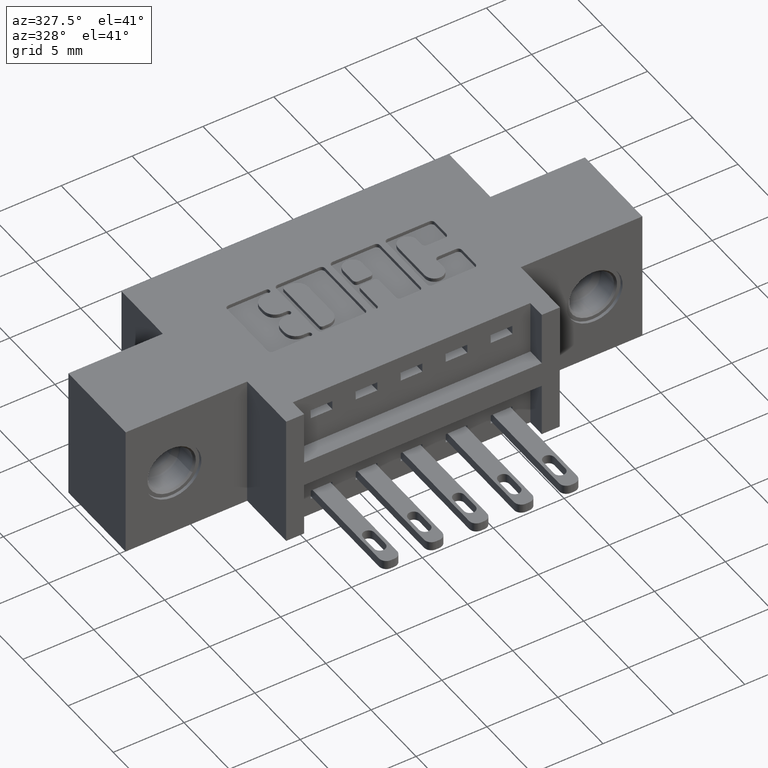
[diagram: clean part render]
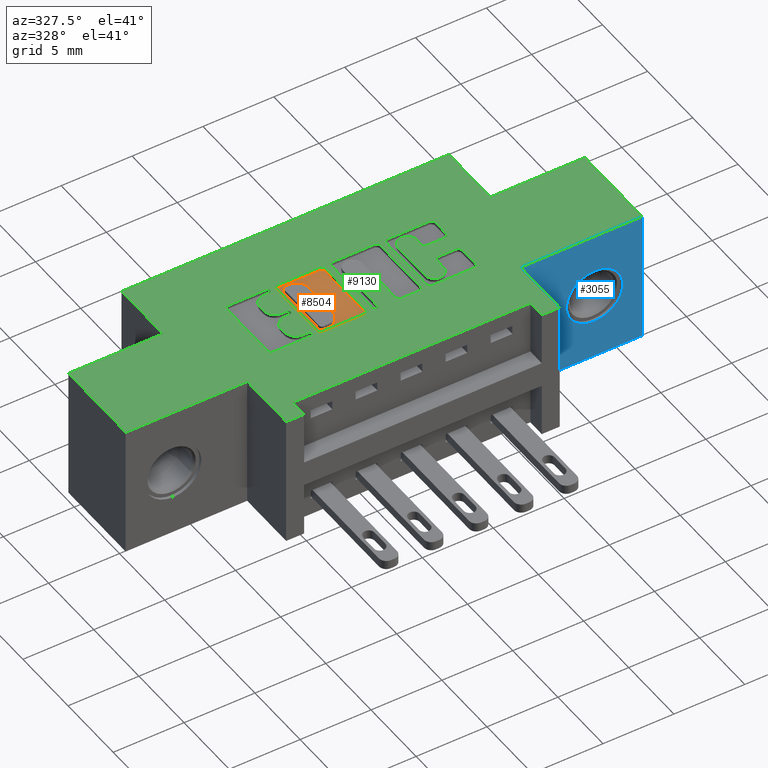
[diagram: same view with three faces highlighted in distinct colors, each labeled with its STEP entity id]
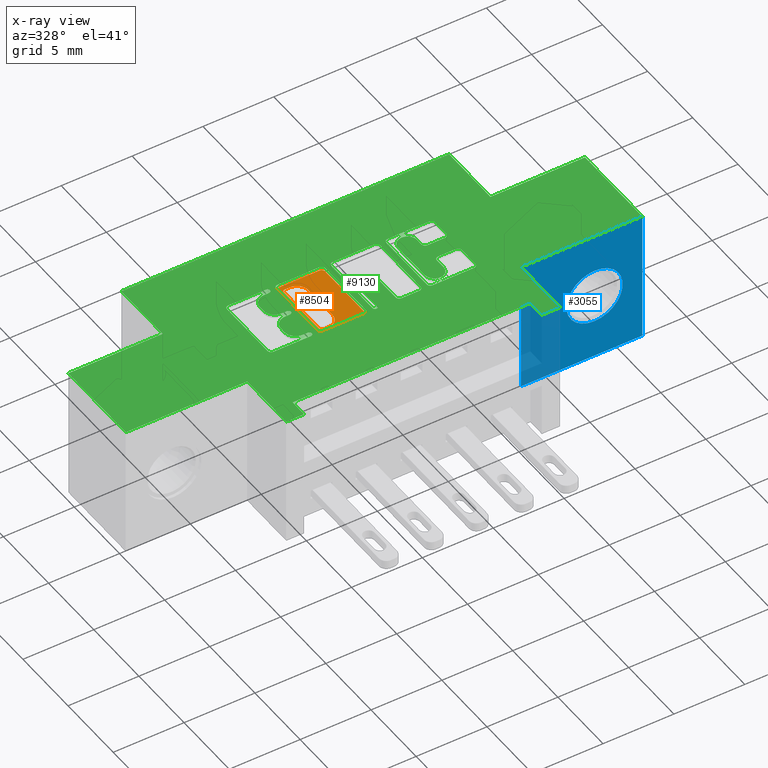
[diagram: x-ray of the same camera — body ghosted, the three highlighted faces saturated]
A machine part, auxiliary view with three faces highlighted in distinct colors.
The next image is the same camera in x-ray (body ghosted, the three faces saturated) — at least one of them is partly hidden behind the body in this view.
Their STEP definitions:

[orange] entity #8504 — the highlighted planar face has unit normal (0, 0, 1).
#133 = VERTEX_POINT ( 'NONE', #537 ) ;
#179 = DIRECTION ( 'NONE',  ( 0.0000000000000000000, -1.000000000000000000, 0.0000000000000000000 ) ) ;
#361 = ORIENTED_EDGE ( 'NONE', *, *, #5994, .F. ) ;
#405 = CARTESIAN_POINT ( 'NONE',  ( 0.0000000000000000000, 0.4094147637527238981, -0.01000000000000000021 ) ) ;
#414 = AXIS2_PLACEMENT_3D ( 'NONE', #3829, #8853, #6686 ) ;
#428 = CIRCLE ( 'NONE', #8281, 0.03141014465217187995 ) ;
#537 = CARTESIAN_POINT ( 'NONE',  ( 0.6990956183678621594, 0.2268432979619826595, -0.01000000000000000021 ) ) ;
#607 = ORIENTED_EDGE ( 'NONE', *, *, #8100, .T. ) ;
#741 = VERTEX_POINT ( 'NONE', #4530 ) ;
#800 = CARTESIAN_POINT ( 'NONE',  ( 0.5734550397591693383, 0.0000000000000000000, -0.01000000000000000021 ) ) ;
#819 = CIRCLE ( 'NONE', #6125, 0.009815670203841039831 ) ;
#840 = DIRECTION ( 'NONE',  ( -0.0000000000000000000, 0.0000000000000000000, 1.000000000000000000 ) ) ;
#1008 = CARTESIAN_POINT ( 'NONE',  ( 0.6083006689826718771, 0.3780046191005519973, -0.01000000000000000021 ) ) ;
#1017 = CIRCLE ( 'NONE', #414, 0.006870969142663253815 ) ;
#1036 = EDGE_CURVE ( 'NONE', #6445, #7103, #3759, .T. ) ;
#1110 = ORIENTED_EDGE ( 'NONE', *, *, #3360, .T. ) ;
#1128 = DIRECTION ( 'NONE',  ( -1.000000000000000000, 0.0000000000000000000, 0.0000000000000000000 ) ) ;
#1219 = FACE_BOUND ( 'NONE', #5641, .T. ) ;
#1236 = AXIS2_PLACEMENT_3D ( 'NONE', #7805, #2642, #6967 ) ;
#1290 = ORIENTED_EDGE ( 'NONE', *, *, #6725, .T. ) ;
#1305 = CARTESIAN_POINT ( 'NONE',  ( 0.5832707099630102254, 0.4231567020380505029, -0.01000000000000000021 ) ) ;
#1457 = DIRECTION ( 'NONE',  ( -0.0000000000000000000, 0.0000000000000000000, 1.000000000000000000 ) ) ;
#1506 = DIRECTION ( 'NONE',  ( 1.000000000000000000, 0.0000000000000000000, 0.0000000000000000000 ) ) ;
#1562 = LINE ( 'NONE', #5893, #2598 ) ;
#1688 = CIRCLE ( 'NONE', #5330, 0.006870969142667761494 ) ;
#1714 = DIRECTION ( 'NONE',  ( 1.000000000000000000, 0.0000000000000000000, 0.0000000000000000000 ) ) ;
#1817 = LINE ( 'NONE', #6296, #8074 ) ;
#1902 = EDGE_CURVE ( 'NONE', #5149, #2478, #819, .T. ) ;
#1946 = DIRECTION ( 'NONE',  ( 1.000000000000000000, 0.0000000000000000000, 0.0000000000000000000 ) ) ;
#2001 = DIRECTION ( 'NONE',  ( 0.0000000000000000000, 1.000000000000000000, -0.0000000000000000000 ) ) ;
#2128 = VERTEX_POINT ( 'NONE', #6021 ) ;
#2149 = EDGE_CURVE ( 'NONE', #8295, #3962, #2397, .T. ) ;
#2254 = LINE ( 'NONE', #800, #5226 ) ;
#2397 = LINE ( 'NONE', #5297, #8234 ) ;
#2478 = VERTEX_POINT ( 'NONE', #8821 ) ;
#2598 = VECTOR ( 'NONE', #7448, 39.37007874015748143 ) ;
#2617 = CARTESIAN_POINT ( 'NONE',  ( 0.7089112885716690737, 0.2366589681657894073, -0.01000000000000000021 ) ) ;
#2642 = DIRECTION ( 'NONE',  ( -0.0000000000000000000, 0.0000000000000000000, 1.000000000000000000 ) ) ;
#2693 = CARTESIAN_POINT ( 'NONE',  ( 0.6397108136348437224, 0.3780046191005519973, -0.01000000000000000021 ) ) ;
#2799 = CARTESIAN_POINT ( 'NONE',  ( 0.7089112885716690737, 0.4133410318342096157, -0.01000000000000000021 ) ) ;
#2818 = ORIENTED_EDGE ( 'NONE', *, *, #1036, .T. ) ;
#2868 = VERTEX_POINT ( 'NONE', #9002 ) ;
#2964 = CARTESIAN_POINT ( 'NONE',  ( 0.5940679471871666006, 0.4025437946100562381, -0.01000000000000000021 ) ) ;
#3053 = ORIENTED_EDGE ( 'NONE', *, *, #5698, .T. ) ;
#3120 = CIRCLE ( 'NONE', #8266, 0.03141014465217017299 ) ;
#3132 = ORIENTED_EDGE ( 'NONE', *, *, #6675, .F. ) ;
#3325 = ORIENTED_EDGE ( 'NONE', *, *, #8742, .F. ) ;
#3360 = EDGE_CURVE ( 'NONE', #8644, #8914, #1817, .T. ) ;
#3514 = DIRECTION ( 'NONE',  ( -0.0000000000000000000, 0.0000000000000000000, 1.000000000000000000 ) ) ;
#3530 = ORIENTED_EDGE ( 'NONE', *, *, #4969, .T. ) ;
#3582 = EDGE_CURVE ( 'NONE', #133, #8124, #5824, .T. ) ;
#3605 = CARTESIAN_POINT ( 'NONE',  ( 0.6083006689826735425, 0.2405852362473137329, -0.01000000000000000021 ) ) ;
#3608 = VERTEX_POINT ( 'NONE', #8822 ) ;
#3628 = ORIENTED_EDGE ( 'NONE', *, *, #8449, .T. ) ;
#3726 = DIRECTION ( 'NONE',  ( 1.000000000000000000, 0.0000000000000000000, 0.0000000000000000000 ) ) ;
#3759 = CIRCLE ( 'NONE', #7586, 0.009815670203840902788 ) ;
#3829 = CARTESIAN_POINT ( 'NONE',  ( 0.5940679471871621598, 0.2474562053899769520, -0.01000000000000000021 ) ) ;
#3897 = DIRECTION ( 'NONE',  ( -0.0000000000000000000, 0.0000000000000000000, 1.000000000000000000 ) ) ;
#3938 = ORIENTED_EDGE ( 'NONE', *, *, #4421, .T. ) ;
#3962 = VERTEX_POINT ( 'NONE', #6794 ) ;
#4037 = LINE ( 'NONE', #8434, #8135 ) ;
#4237 = ORIENTED_EDGE ( 'NONE', *, *, #5671, .F. ) ;
#4247 = ORIENTED_EDGE ( 'NONE', *, *, #3582, .T. ) ;
#4289 = VERTEX_POINT ( 'NONE', #2693 ) ;
#4353 = DIRECTION ( 'NONE',  ( 1.000000000000000000, 0.0000000000000000000, 0.0000000000000000000 ) ) ;
#4421 = EDGE_CURVE ( 'NONE', #7103, #2868, #2254, .T. ) ;
#4451 = DIRECTION ( 'NONE',  ( -0.0000000000000000000, 0.0000000000000000000, 1.000000000000000000 ) ) ;
#4453 = CARTESIAN_POINT ( 'NONE',  ( 0.5734550397591693383, 0.4133410318342096157, -0.01000000000000000021 ) ) ;
#4530 = CARTESIAN_POINT ( 'NONE',  ( 0.6397108136348437224, 0.2719953808994839961, -0.01000000000000000021 ) ) ;
#4928 = DIRECTION ( 'NONE',  ( 1.000000000000000000, 0.0000000000000000000, 0.0000000000000000000 ) ) ;
#4969 = EDGE_CURVE ( 'NONE', #2128, #133, #7783, .T. ) ;
#5040 = DIRECTION ( 'NONE',  ( 1.000000000000000000, 0.0000000000000000000, 0.0000000000000000000 ) ) ;
#5149 = VERTEX_POINT ( 'NONE', #2799 ) ;
#5183 = CARTESIAN_POINT ( 'NONE',  ( 0.6990956183678621594, 0.2366589681657894073, -0.01000000000000000021 ) ) ;
#5212 = AXIS2_PLACEMENT_3D ( 'NONE', #5183, #5230, #1714 ) ;
#5226 = VECTOR ( 'NONE', #179, 39.37007874015748143 ) ;
#5230 = DIRECTION ( 'NONE',  ( -0.0000000000000000000, 0.0000000000000000000, 1.000000000000000000 ) ) ;
#5297 = CARTESIAN_POINT ( 'NONE',  ( 0.0000000000000000000, 0.2405852362473137329, -0.01000000000000000021 ) ) ;
#5330 = AXIS2_PLACEMENT_3D ( 'NONE', #2964, #840, #3726 ) ;
#5484 = CARTESIAN_POINT ( 'NONE',  ( 0.0000000000000000000, 0.4231567020380505029, -0.01000000000000000021 ) ) ;
#5635 = CARTESIAN_POINT ( 'NONE',  ( 0.6990956183678280755, 0.4133410318342094492, -0.01000000000000000021 ) ) ;
#5641 = EDGE_LOOP ( 'NONE', ( #3325, #607, #3132, #1290, #361, #6853, #4237, #1110 ) ) ;
#5671 = EDGE_CURVE ( 'NONE', #8644, #3962, #1017, .T. ) ;
#5683 = FACE_OUTER_BOUND ( 'NONE', #8130, .T. ) ;
#5698 = EDGE_CURVE ( 'NONE', #2868, #2128, #6922, .T. ) ;
#5732 = DIRECTION ( 'NONE',  ( -0.0000000000000000000, 0.0000000000000000000, 1.000000000000000000 ) ) ;
#5824 = CIRCLE ( 'NONE', #5212, 0.009815670203806891800 ) ;
#5828 = VERTEX_POINT ( 'NONE', #7533 ) ;
#5893 = CARTESIAN_POINT ( 'NONE',  ( 0.7089112885716690737, 0.0000000000000000000, -0.01000000000000000021 ) ) ;
#5994 = EDGE_CURVE ( 'NONE', #8295, #741, #3120, .T. ) ;
#6021 = CARTESIAN_POINT ( 'NONE',  ( 0.5832707099629761416, 0.2268432979619826595, -0.01000000000000000021 ) ) ;
#6125 = AXIS2_PLACEMENT_3D ( 'NONE', #5635, #5732, #4928 ) ;
#6296 = CARTESIAN_POINT ( 'NONE',  ( 0.5871969780444988851, 0.0000000000000000000, -0.01000000000000000021 ) ) ;
#6333 = LINE ( 'NONE', #405, #7737 ) ;
#6445 = VERTEX_POINT ( 'NONE', #1305 ) ;
#6675 = EDGE_CURVE ( 'NONE', #4289, #3608, #428, .T. ) ;
#6686 = DIRECTION ( 'NONE',  ( 1.000000000000000000, 0.0000000000000000000, 0.0000000000000000000 ) ) ;
#6725 = EDGE_CURVE ( 'NONE', #4289, #741, #4037, .T. ) ;
#6748 = ORIENTED_EDGE ( 'NONE', *, *, #1902, .T. ) ;
#6776 = AXIS2_PLACEMENT_3D ( 'NONE', #8095, #4451, #1506 ) ;
#6794 = CARTESIAN_POINT ( 'NONE',  ( 0.5940679471871621598, 0.2405852362473137329, -0.01000000000000000021 ) ) ;
#6800 = DIRECTION ( 'NONE',  ( 1.000000000000000000, 0.0000000000000000000, 0.0000000000000000000 ) ) ;
#6853 = ORIENTED_EDGE ( 'NONE', *, *, #2149, .T. ) ;
#6922 = CIRCLE ( 'NONE', #6776, 0.009815670203806754757 ) ;
#6967 = DIRECTION ( 'NONE',  ( 1.000000000000000000, 0.0000000000000000000, 0.0000000000000000000 ) ) ;
#7013 = PLANE ( 'NONE',  #1236 ) ;
#7051 = DIRECTION ( 'NONE',  ( -1.000000000000000000, 0.0000000000000000000, 0.0000000000000000000 ) ) ;
#7085 = CARTESIAN_POINT ( 'NONE',  ( 0.0000000000000000000, 0.2268432979619826595, -0.01000000000000000021 ) ) ;
#7103 = VERTEX_POINT ( 'NONE', #4453 ) ;
#7285 = CARTESIAN_POINT ( 'NONE',  ( 0.5871969780444988851, 0.2474562053899769520, -0.01000000000000000021 ) ) ;
#7448 = DIRECTION ( 'NONE',  ( 0.0000000000000000000, 1.000000000000000000, -0.0000000000000000000 ) ) ;
#7533 = CARTESIAN_POINT ( 'NONE',  ( 0.5940679471871666006, 0.4094147637527238981, -0.01000000000000000021 ) ) ;
#7586 = AXIS2_PLACEMENT_3D ( 'NONE', #8588, #3514, #5040 ) ;
#7737 = VECTOR ( 'NONE', #1946, 39.37007874015748143 ) ;
#7771 = DIRECTION ( 'NONE',  ( 0.0000000000000000000, -1.000000000000000000, 0.0000000000000000000 ) ) ;
#7783 = LINE ( 'NONE', #7085, #8556 ) ;
#7805 = CARTESIAN_POINT ( 'NONE',  ( 0.0000000000000000000, 0.0000000000000000000, -0.01000000000000000021 ) ) ;
#8074 = VECTOR ( 'NONE', #2001, 39.37007874015748143 ) ;
#8095 = CARTESIAN_POINT ( 'NONE',  ( 0.5832707099629761416, 0.2366589681657894073, -0.01000000000000000021 ) ) ;
#8100 = EDGE_CURVE ( 'NONE', #5828, #3608, #6333, .T. ) ;
#8124 = VERTEX_POINT ( 'NONE', #2617 ) ;
#8130 = EDGE_LOOP ( 'NONE', ( #3628, #6748, #8466, #2818, #3938, #3053, #3530, #4247 ) ) ;
#8135 = VECTOR ( 'NONE', #7771, 39.37007874015748143 ) ;
#8234 = VECTOR ( 'NONE', #1128, 39.37007874015748143 ) ;
#8266 = AXIS2_PLACEMENT_3D ( 'NONE', #8603, #1457, #4353 ) ;
#8281 = AXIS2_PLACEMENT_3D ( 'NONE', #1008, #3897, #6800 ) ;
#8295 = VERTEX_POINT ( 'NONE', #3605 ) ;
#8301 = DIRECTION ( 'NONE',  ( 1.000000000000000000, 0.0000000000000000000, 0.0000000000000000000 ) ) ;
#8414 = LINE ( 'NONE', #5484, #8958 ) ;
#8434 = CARTESIAN_POINT ( 'NONE',  ( 0.6397108136348437224, 0.0000000000000000000, -0.01000000000000000021 ) ) ;
#8449 = EDGE_CURVE ( 'NONE', #8124, #5149, #1562, .T. ) ;
#8466 = ORIENTED_EDGE ( 'NONE', *, *, #8916, .T. ) ;
#8504 = ADVANCED_FACE ( 'NONE', ( #1219, #5683 ), #7013, .T. ) ;
#8556 = VECTOR ( 'NONE', #8301, 39.37007874015748143 ) ;
#8588 = CARTESIAN_POINT ( 'NONE',  ( 0.5832707099630102254, 0.4133410318342096157, -0.01000000000000000021 ) ) ;
#8603 = CARTESIAN_POINT ( 'NONE',  ( 0.6083006689826735425, 0.2719953808994839961, -0.01000000000000000021 ) ) ;
#8644 = VERTEX_POINT ( 'NONE', #7285 ) ;
#8742 = EDGE_CURVE ( 'NONE', #5828, #8914, #1688, .T. ) ;
#8821 = CARTESIAN_POINT ( 'NONE',  ( 0.6990956183678962432, 0.4231567020380505029, -0.01000000000000000021 ) ) ;
#8822 = CARTESIAN_POINT ( 'NONE',  ( 0.6083006689826780944, 0.4094147637527238981, -0.01000000000000000021 ) ) ;
#8853 = DIRECTION ( 'NONE',  ( -0.0000000000000000000, 0.0000000000000000000, 1.000000000000000000 ) ) ;
#8914 = VERTEX_POINT ( 'NONE', #9116 ) ;
#8916 = EDGE_CURVE ( 'NONE', #2478, #6445, #8414, .T. ) ;
#8958 = VECTOR ( 'NONE', #7051, 39.37007874015748143 ) ;
#9002 = CARTESIAN_POINT ( 'NONE',  ( 0.5734550397591693383, 0.2366589681657894073, -0.01000000000000000021 ) ) ;
#9116 = CARTESIAN_POINT ( 'NONE',  ( 0.5871969780444988851, 0.4025437946100562381, -0.01000000000000000021 ) ) ;

[blue] entity #3055 — the highlighted planar face has unit normal (0, -1, 0).
#251 = VECTOR ( 'NONE', #9322, 39.37007874015748143 ) ;
#525 = AXIS2_PLACEMENT_3D ( 'NONE', #6403, #7897, #3444 ) ;
#632 = VECTOR ( 'NONE', #3556, 39.37007874015748143 ) ;
#659 = CARTESIAN_POINT ( 'NONE',  ( 1.302500000000000657, 0.1699999999999999845, -0.1849999999999999978 ) ) ;
#968 = AXIS2_PLACEMENT_3D ( 'NONE', #4974, #3593, #5776 ) ;
#1065 = ORIENTED_EDGE ( 'NONE', *, *, #3111, .F. ) ;
#1476 = CARTESIAN_POINT ( 'NONE',  ( 1.097499999999999920, 0.1699999999999999845, 9.307315673519872394E-17 ) ) ;
#1703 = VERTEX_POINT ( 'NONE', #1750 ) ;
#1750 = CARTESIAN_POINT ( 'NONE',  ( 1.302500000000000657, 0.1699999999999999845, -0.2630000000000001226 ) ) ;
#1849 = VERTEX_POINT ( 'NONE', #3488 ) ;
#1851 = EDGE_CURVE ( 'NONE', #3225, #1703, #4613, .T. ) ;
#2073 = PLANE ( 'NONE',  #968 ) ;
#2345 = LINE ( 'NONE', #3959, #7872 ) ;
#2772 = EDGE_LOOP ( 'NONE', ( #6332, #7234, #5377, #3356 ) ) ;
#2777 = AXIS2_PLACEMENT_3D ( 'NONE', #659, #2829, #4173 ) ;
#2829 = DIRECTION ( 'NONE',  ( 0.0000000000000000000, -1.000000000000000000, -0.0000000000000000000 ) ) ;
#2872 = FACE_OUTER_BOUND ( 'NONE', #2772, .T. ) ;
#2956 = VERTEX_POINT ( 'NONE', #9048 ) ;
#3055 = ADVANCED_FACE ( 'NONE', ( #4879, #2872 ), #2073, .T. ) ;
#3065 = CARTESIAN_POINT ( 'NONE',  ( 1.302500000000000657, 0.1699999999999999845, -0.1069999999999999285 ) ) ;
#3111 = EDGE_CURVE ( 'NONE', #1703, #3225, #5355, .T. ) ;
#3129 = EDGE_CURVE ( 'NONE', #1849, #7978, #7068, .T. ) ;
#3225 = VERTEX_POINT ( 'NONE', #3065 ) ;
#3356 = ORIENTED_EDGE ( 'NONE', *, *, #5567, .T. ) ;
#3444 = DIRECTION ( 'NONE',  ( 0.0000000000000000000, 0.0000000000000000000, -1.000000000000000000 ) ) ;
#3450 = CARTESIAN_POINT ( 'NONE',  ( 1.435000000000000497, 0.1699999999999999845, 1.757368156776452522E-16 ) ) ;
#3488 = CARTESIAN_POINT ( 'NONE',  ( 1.435000000000000497, 0.1699999999999999845, 1.757368156776452522E-16 ) ) ;
#3556 = DIRECTION ( 'NONE',  ( 0.0000000000000000000, 0.0000000000000000000, -1.000000000000000000 ) ) ;
#3593 = DIRECTION ( 'NONE',  ( 0.0000000000000000000, -1.000000000000000000, 0.0000000000000000000 ) ) ;
#3856 = CARTESIAN_POINT ( 'NONE',  ( 1.097499999999999920, 0.1699999999999999845, 9.307315673519872394E-17 ) ) ;
#3959 = CARTESIAN_POINT ( 'NONE',  ( 1.435000000000000497, 0.1699999999999999845, -0.3699999999999999400 ) ) ;
#4173 = DIRECTION ( 'NONE',  ( 0.0000000000000000000, 0.0000000000000000000, -1.000000000000000000 ) ) ;
#4177 = LINE ( 'NONE', #3450, #251 ) ;
#4613 = CIRCLE ( 'NONE', #525, 0.07800000000000009703 ) ;
#4866 = EDGE_LOOP ( 'NONE', ( #9184, #1065 ) ) ;
#4879 = FACE_BOUND ( 'NONE', #4866, .T. ) ;
#4974 = CARTESIAN_POINT ( 'NONE',  ( 1.097499999999999920, 0.1699999999999999845, 9.307315673519872394E-17 ) ) ;
#5355 = CIRCLE ( 'NONE', #2777, 0.07800000000000009703 ) ;
#5377 = ORIENTED_EDGE ( 'NONE', *, *, #7413, .T. ) ;
#5567 = EDGE_CURVE ( 'NONE', #2956, #1849, #4177, .T. ) ;
#5638 = DIRECTION ( 'NONE',  ( -1.000000000000000000, 0.0000000000000000000, -2.449293598294708880E-16 ) ) ;
#5776 = DIRECTION ( 'NONE',  ( 0.0000000000000000000, 0.0000000000000000000, -1.000000000000000000 ) ) ;
#6332 = ORIENTED_EDGE ( 'NONE', *, *, #3129, .T. ) ;
#6359 = CARTESIAN_POINT ( 'NONE',  ( 1.435000000000000497, 0.1699999999999999845, 1.757368156776452522E-16 ) ) ;
#6403 = CARTESIAN_POINT ( 'NONE',  ( 1.302500000000000657, 0.1699999999999999845, -0.1849999999999999978 ) ) ;
#6511 = LINE ( 'NONE', #1476, #632 ) ;
#6865 = DIRECTION ( 'NONE',  ( 1.000000000000000000, -0.0000000000000000000, 4.047182212835940085E-16 ) ) ;
#6926 = CARTESIAN_POINT ( 'NONE',  ( 1.097499999999999920, 0.1699999999999999845, -0.3700000000000001066 ) ) ;
#7068 = LINE ( 'NONE', #6359, #9125 ) ;
#7157 = VERTEX_POINT ( 'NONE', #6926 ) ;
#7234 = ORIENTED_EDGE ( 'NONE', *, *, #8263, .T. ) ;
#7413 = EDGE_CURVE ( 'NONE', #7157, #2956, #2345, .T. ) ;
#7872 = VECTOR ( 'NONE', #6865, 39.37007874015748143 ) ;
#7897 = DIRECTION ( 'NONE',  ( 0.0000000000000000000, -1.000000000000000000, -0.0000000000000000000 ) ) ;
#7978 = VERTEX_POINT ( 'NONE', #3856 ) ;
#8263 = EDGE_CURVE ( 'NONE', #7978, #7157, #6511, .T. ) ;
#9048 = CARTESIAN_POINT ( 'NONE',  ( 1.435000000000000497, 0.1699999999999999845, -0.3699999999999999400 ) ) ;
#9125 = VECTOR ( 'NONE', #5638, 39.37007874015748143 ) ;
#9184 = ORIENTED_EDGE ( 'NONE', *, *, #1851, .F. ) ;
#9322 = DIRECTION ( 'NONE',  ( -0.0000000000000000000, -0.0000000000000000000, 1.000000000000000000 ) ) ;

[green] entity #9130 — the highlighted planar face has unit normal (0, 0, -1).
#8 = DIRECTION ( 'NONE',  ( 0.0000000000000000000, 1.000000000000000000, -0.0000000000000000000 ) ) ;
#56 = CARTESIAN_POINT ( 'NONE',  ( 0.6990956183678280755, 0.4133410318342094492, 0.0000000000000000000 ) ) ;
#91 = DIRECTION ( 'NONE',  ( 1.000000000000000000, 0.0000000000000000000, 0.0000000000000000000 ) ) ;
#103 = DIRECTION ( 'NONE',  ( -0.0000000000000000000, 0.0000000000000000000, 1.000000000000000000 ) ) ;
#117 = EDGE_CURVE ( 'NONE', #2252, #787, #6880, .T. ) ;
#151 = LINE ( 'NONE', #5943, #2770 ) ;
#175 = CARTESIAN_POINT ( 'NONE',  ( 0.5575045756779978268, 0.2337142671046474052, 0.0000000000000000000 ) ) ;
#192 = DIRECTION ( 'NONE',  ( -0.0000000000000000000, 0.0000000000000000000, 1.000000000000000000 ) ) ;
#204 = CARTESIAN_POINT ( 'NONE',  ( 1.004362961706167123, 0.3637718973050381166, 0.0000000000000000000 ) ) ;
#226 = LINE ( 'NONE', #5295, #3728 ) ;
#240 = CARTESIAN_POINT ( 'NONE',  ( 0.2625000000000000111, 0.4199999999999999845, 0.0000000000000000000 ) ) ;
#254 = DIRECTION ( 'NONE',  ( -0.0000000000000000000, 0.0000000000000000000, 1.000000000000000000 ) ) ;
#255 = AXIS2_PLACEMENT_3D ( 'NONE', #8491, #7836, #7179 ) ;
#265 = VERTEX_POINT ( 'NONE', #1510 ) ;
#308 = VERTEX_POINT ( 'NONE', #8101 ) ;
#362 = CARTESIAN_POINT ( 'NONE',  ( 0.9449781569731660058, 0.3637718973050446669, 0.0000000000000000000 ) ) ;
#367 = CARTESIAN_POINT ( 'NONE',  ( 0.5832707099629761416, 0.2268432979619826595, 0.0000000000000000000 ) ) ;
#368 = ORIENTED_EDGE ( 'NONE', *, *, #4717, .T. ) ;
#371 = VECTOR ( 'NONE', #2715, 39.37007874015748143 ) ;
#378 = VERTEX_POINT ( 'NONE', #1309 ) ;
#390 = AXIS2_PLACEMENT_3D ( 'NONE', #4313, #2874, #2074 ) ;
#397 = EDGE_CURVE ( 'NONE', #451, #2070, #9212, .T. ) ;
#407 = ORIENTED_EDGE ( 'NONE', *, *, #8351, .F. ) ;
#413 = CARTESIAN_POINT ( 'NONE',  ( 0.8517292900370140307, 0.4231567020380060384, 0.0000000000000000000 ) ) ;
#415 = VERTEX_POINT ( 'NONE', #1873 ) ;
#424 = DIRECTION ( 'NONE',  ( -1.000000000000000000, 0.0000000000000000000, 0.0000000000000000000 ) ) ;
#429 = EDGE_CURVE ( 'NONE', #8404, #8303, #3255, .T. ) ;
#451 = VERTEX_POINT ( 'NONE', #2724 ) ;
#466 = VERTEX_POINT ( 'NONE', #7709 ) ;
#486 = VECTOR ( 'NONE', #2686, 39.37007874015748143 ) ;
#522 = EDGE_CURVE ( 'NONE', #1967, #7039, #8599, .T. ) ;
#523 = VECTOR ( 'NONE', #686, 39.37007874015748143 ) ;
#573 = ORIENTED_EDGE ( 'NONE', *, *, #3098, .F. ) ;
#578 = CARTESIAN_POINT ( 'NONE',  ( 0.8517292900370116993, 0.4133410318342098377, 0.0000000000000000000 ) ) ;
#583 = CARTESIAN_POINT ( 'NONE',  ( 0.7825288151001879022, 0.3083133606535522486, 0.0000000000000000000 ) ) ;
#586 = CARTESIAN_POINT ( 'NONE',  ( 1.172500000000000764, 0.4199999999999999845, 0.0000000000000000000 ) ) ;
#619 = CARTESIAN_POINT ( 'NONE',  ( 0.5371370600050840993, 0.3318709691426833253, 0.0000000000000000000 ) ) ;
#620 = CARTESIAN_POINT ( 'NONE',  ( 0.0000000000000000000, 0.0000000000000000000, 0.0000000000000000000 ) ) ;
#622 = VECTOR ( 'NONE', #8177, 39.37007874015748143 ) ;
#653 = CARTESIAN_POINT ( 'NONE',  ( 0.7329596805709871488, 0.2337142671046474052, 0.0000000000000000000 ) ) ;
#662 = AXIS2_PLACEMENT_3D ( 'NONE', #578, #2038, #2119 ) ;
#672 = LINE ( 'NONE', #620, #959 ) ;
#686 = DIRECTION ( 'NONE',  ( 0.0000000000000000000, 1.000000000000000000, -0.0000000000000000000 ) ) ;
#687 = ORIENTED_EDGE ( 'NONE', *, *, #8574, .F. ) ;
#704 = DIRECTION ( 'NONE',  ( 1.000000000000000000, -0.0000000000000000000, -0.0000000000000000000 ) ) ;
#712 = CARTESIAN_POINT ( 'NONE',  ( 0.7359043816321275688, 0.4133410318342096157, 0.0000000000000000000 ) ) ;
#721 = DIRECTION ( 'NONE',  ( 1.000000000000000000, 0.0000000000000000000, 0.0000000000000000000 ) ) ;
#758 = CARTESIAN_POINT ( 'NONE',  ( 0.9449781569731660058, 0.3831578454992594085, 0.0000000000000000000 ) ) ;
#767 = CARTESIAN_POINT ( 'NONE',  ( 0.0000000000000000000, 0.4199999999999999845, 0.0000000000000000000 ) ) ;
#771 = ORIENTED_EDGE ( 'NONE', *, *, #793, .F. ) ;
#777 = EDGE_LOOP ( 'NONE', ( #3954, #3013, #7898, #2572, #3259, #8321, #7255, #7831, #5194, #2192, #2500, #3112, #2491, #1028 ) ) ;
#778 = LINE ( 'NONE', #2900, #1676 ) ;
#781 = FACE_BOUND ( 'NONE', #5425, .T. ) ;
#787 = VERTEX_POINT ( 'NONE', #413 ) ;
#793 = EDGE_CURVE ( 'NONE', #6966, #875, #3289, .T. ) ;
#812 = LINE ( 'NONE', #5986, #2155 ) ;
#823 = ORIENTED_EDGE ( 'NONE', *, *, #6597, .F. ) ;
#824 = DIRECTION ( 'NONE',  ( -1.000000000000000000, 0.0000000000000000000, 0.0000000000000000000 ) ) ;
#834 = VERTEX_POINT ( 'NONE', #9201 ) ;
#844 = ORIENTED_EDGE ( 'NONE', *, *, #8048, .T. ) ;
#849 = CIRCLE ( 'NONE', #7513, 0.03141014465221592805 ) ;
#875 = VERTEX_POINT ( 'NONE', #362 ) ;
#880 = VERTEX_POINT ( 'NONE', #1247 ) ;
#932 = CIRCLE ( 'NONE', #6237, 0.03141014465218178175 ) ;
#940 = DIRECTION ( 'NONE',  ( 1.000000000000000000, 0.0000000000000000000, 0.0000000000000000000 ) ) ;
#959 = VECTOR ( 'NONE', #4368, 39.37007874015748143 ) ;
#982 = CARTESIAN_POINT ( 'NONE',  ( 0.4365264404161155465, 0.0000000000000000000, 0.0000000000000000000 ) ) ;
#1011 = DIRECTION ( 'NONE',  ( 1.000000000000000000, 0.0000000000000000000, 0.0000000000000000000 ) ) ;
#1025 = EDGE_CURVE ( 'NONE', #7922, #4994, #1429, .T. ) ;
#1028 = ORIENTED_EDGE ( 'NONE', *, *, #4305, .F. ) ;
#1048 = LINE ( 'NONE', #2557, #8869 ) ;
#1053 = CARTESIAN_POINT ( 'NONE',  ( 0.7359043816321275688, 0.4231567020380060384, 0.0000000000000000000 ) ) ;
#1060 = CARTESIAN_POINT ( 'NONE',  ( 0.5371370600050840993, 0.3632811137948578351, 0.0000000000000000000 ) ) ;
#1070 = CARTESIAN_POINT ( 'NONE',  ( 0.8615449602408068452, 0.0000000000000000000, 0.0000000000000000000 ) ) ;
#1077 = AXIS2_PLACEMENT_3D ( 'NONE', #1119, #1958, #6198 ) ;
#1104 = VERTEX_POINT ( 'NONE', #5900 ) ;
#1119 = CARTESIAN_POINT ( 'NONE',  ( 0.8021601555077881862, 0.2366589681657872979, 0.0000000000000000000 ) ) ;
#1155 = VECTOR ( 'NONE', #4609, 39.37007874015748143 ) ;
#1159 = EDGE_CURVE ( 'NONE', #5108, #7508, #1709, .T. ) ;
#1171 = VERTEX_POINT ( 'NONE', #8161 ) ;
#1213 = CARTESIAN_POINT ( 'NONE',  ( 0.0000000000000000000, 0.4231567020380505029, 0.0000000000000000000 ) ) ;
#1225 = EDGE_CURVE ( 'NONE', #6945, #2389, #151, .T. ) ;
#1243 = ORIENTED_EDGE ( 'NONE', *, *, #5019, .F. ) ;
#1247 = CARTESIAN_POINT ( 'NONE',  ( 0.5506336064154144783, 0.2405852362473096806, 0.0000000000000000000 ) ) ;
#1248 = ORIENTED_EDGE ( 'NONE', *, *, #7464, .F. ) ;
#1257 = VECTOR ( 'NONE', #5320, 39.37007874015748143 ) ;
#1263 = EDGE_CURVE ( 'NONE', #9294, #2526, #7766, .T. ) ;
#1264 = DIRECTION ( 'NONE',  ( -1.000000000000000000, -0.0000000000000000000, -0.0000000000000000000 ) ) ;
#1273 = CARTESIAN_POINT ( 'NONE',  ( -0.0000000000000000000, 0.2268432979619826595, 0.0000000000000000000 ) ) ;
#1276 = CARTESIAN_POINT ( 'NONE',  ( 0.0000000000000000000, 0.4199999999999999845, 0.0000000000000000000 ) ) ;
#1294 = ORIENTED_EDGE ( 'NONE', *, *, #5117, .F. ) ;
#1309 = CARTESIAN_POINT ( 'NONE',  ( 0.5506336065353514275, 0.4231567020380321842, 0.0000000000000000000 ) ) ;
#1363 = CARTESIAN_POINT ( 'NONE',  ( -0.0000000000000000000, 0.4094147637527351669, 0.0000000000000000000 ) ) ;
#1364 = LINE ( 'NONE', #5068, #4471 ) ;
#1381 = CARTESIAN_POINT ( 'NONE',  ( 0.5734550397591693383, 0.2366589681657894073, 0.0000000000000000000 ) ) ;
#1398 = EDGE_CURVE ( 'NONE', #2684, #3492, #7920, .T. ) ;
#1402 = VERTEX_POINT ( 'NONE', #1053 ) ;
#1429 = CIRCLE ( 'NONE', #255, 0.009815670203787086462 ) ;
#1430 = CIRCLE ( 'NONE', #7489, 0.009815670203806345362 ) ;
#1431 = LINE ( 'NONE', #3508, #2349 ) ;
#1442 = CARTESIAN_POINT ( 'NONE',  ( 0.5506336065353356624, 0.2337142671046474052, 0.0000000000000000000 ) ) ;
#1452 = CIRCLE ( 'NONE', #2656, 0.009815670203805868313 ) ;
#1505 = VERTEX_POINT ( 'NONE', #619 ) ;
#1510 = CARTESIAN_POINT ( 'NONE',  ( 0.4365264404161155465, 0.4133410318342096157, 0.0000000000000000000 ) ) ;
#1514 = VERTEX_POINT ( 'NONE', #2837 ) ;
#1523 = CARTESIAN_POINT ( 'NONE',  ( 0.7089112885716690737, 0.4133410318342096157, 0.0000000000000000000 ) ) ;
#1531 = AXIS2_PLACEMENT_3D ( 'NONE', #8908, #192, #2984 ) ;
#1532 = ORIENTED_EDGE ( 'NONE', *, *, #6959, .T. ) ;
#1537 = CIRCLE ( 'NONE', #2289, 0.009815670203840083999 ) ;
#1539 = DIRECTION ( 'NONE',  ( 0.0000000000000000000, 1.000000000000000000, -0.0000000000000000000 ) ) ;
#1570 = ORIENTED_EDGE ( 'NONE', *, *, #7687, .F. ) ;
#1572 = CIRCLE ( 'NONE', #2931, 0.009815670203803203778 ) ;
#1585 = ORIENTED_EDGE ( 'NONE', *, *, #3869, .F. ) ;
#1604 = EDGE_CURVE ( 'NONE', #2513, #1171, #3846, .T. ) ;
#1607 = CIRCLE ( 'NONE', #2671, 0.009815670203811535655 ) ;
#1608 = DIRECTION ( 'NONE',  ( -0.0000000000000000000, 0.0000000000000000000, 1.000000000000000000 ) ) ;
#1619 = EDGE_CURVE ( 'NONE', #3101, #7418, #3641, .T. ) ;
#1641 = DIRECTION ( 'NONE',  ( 0.0000000000000000000, -1.000000000000000000, 0.0000000000000000000 ) ) ;
#1676 = VECTOR ( 'NONE', #4429, 39.37007874015748143 ) ;
#1709 = CIRCLE ( 'NONE', #6422, 0.009815670203806754757 ) ;
#1713 = LINE ( 'NONE', #7412, #1257 ) ;
#1724 = EDGE_CURVE ( 'NONE', #8544, #2418, #3930, .T. ) ;
#1733 = CARTESIAN_POINT ( 'NONE',  ( 0.4463421106199381705, 0.4231567020380321842, 0.0000000000000000000 ) ) ;
#1741 = VECTOR ( 'NONE', #4498, 39.37007874015748143 ) ;
#1762 = CARTESIAN_POINT ( 'NONE',  ( 0.9547938271769671470, 0.2965345564089690300, 0.0000000000000000000 ) ) ;
#1778 = LINE ( 'NONE', #3867, #3027 ) ;
#1792 = DIRECTION ( 'NONE',  ( 1.000000000000000000, 0.0000000000000000000, 0.0000000000000000000 ) ) ;
#1847 = ORIENTED_EDGE ( 'NONE', *, *, #7465, .F. ) ;
#1849 = VERTEX_POINT ( 'NONE', #3488 ) ;
#1854 = DIRECTION ( 'NONE',  ( -0.0000000000000000000, -1.000000000000000000, -0.0000000000000000000 ) ) ;
#1873 = CARTESIAN_POINT ( 'NONE',  ( 1.097499999999999920, 0.0000000000000000000, 0.0000000000000000000 ) ) ;
#1894 = EDGE_CURVE ( 'NONE', #7508, #4450, #7156, .T. ) ;
#1915 = CARTESIAN_POINT ( 'NONE',  ( -2.860952991549825489E-14, 0.2405852362472441774, 0.0000000000000000000 ) ) ;
#1944 = DIRECTION ( 'NONE',  ( 1.000000000000000000, 0.0000000000000000000, 0.0000000000000000000 ) ) ;
#1958 = DIRECTION ( 'NONE',  ( -0.0000000000000000000, 0.0000000000000000000, 1.000000000000000000 ) ) ;
#1967 = VERTEX_POINT ( 'NONE', #5203 ) ;
#1972 = AXIS2_PLACEMENT_3D ( 'NONE', #7743, #5436, #8312 ) ;
#1978 = CIRCLE ( 'NONE', #2588, 0.009815670203804980135 ) ;
#1999 = ORIENTED_EDGE ( 'NONE', *, *, #3457, .F. ) ;
#2002 = VERTEX_POINT ( 'NONE', #175 ) ;
#2022 = CARTESIAN_POINT ( 'NONE',  ( -0.0000000000000000000, 0.3181290308573562764, 0.0000000000000000000 ) ) ;
#2024 = EDGE_CURVE ( 'NONE', #7039, #5752, #1430, .T. ) ;
#2038 = DIRECTION ( 'NONE',  ( -0.0000000000000000000, 0.0000000000000000000, 1.000000000000000000 ) ) ;
#2048 = VECTOR ( 'NONE', #2955, 39.37007874015748143 ) ;
#2069 = EDGE_CURVE ( 'NONE', #7804, #3538, #1572, .T. ) ;
#2070 = VERTEX_POINT ( 'NONE', #6920 ) ;
#2074 = DIRECTION ( 'NONE',  ( 1.000000000000000000, 0.0000000000000000000, 0.0000000000000000000 ) ) ;
#2082 = LINE ( 'NONE', #3553, #4295 ) ;
#2119 = DIRECTION ( 'NONE',  ( 1.000000000000000000, 0.0000000000000000000, 0.0000000000000000000 ) ) ;
#2127 = LINE ( 'NONE', #767, #4028 ) ;
#2139 = LINE ( 'NONE', #5716, #8328 ) ;
#2155 = VECTOR ( 'NONE', #2981, 39.37007874015748143 ) ;
#2170 = AXIS2_PLACEMENT_3D ( 'NONE', #583, #9281, #4273 ) ;
#2192 = ORIENTED_EDGE ( 'NONE', *, *, #2069, .T. ) ;
#2193 = DIRECTION ( 'NONE',  ( 1.000000000000000000, 0.0000000000000000000, 0.0000000000000000000 ) ) ;
#2194 = LINE ( 'NONE', #3661, #2048 ) ;
#2206 = DIRECTION ( 'NONE',  ( 1.000000000000000000, 0.0000000000000000000, 0.0000000000000000000 ) ) ;
#2224 = CARTESIAN_POINT ( 'NONE',  ( 0.0000000000000000000, 0.1699999999999999845, 0.0000000000000000000 ) ) ;
#2252 = VERTEX_POINT ( 'NONE', #9173 ) ;
#2261 = CARTESIAN_POINT ( 'NONE',  ( 0.5371370600051096345, 0.2405852362473080708, 0.0000000000000000000 ) ) ;
#2266 = CARTESIAN_POINT ( 'NONE',  ( 0.0000000000000000000, 0.5999999999999999778, 0.0000000000000000000 ) ) ;
#2273 = ORIENTED_EDGE ( 'NONE', *, *, #3704, .F. ) ;
#2276 = VERTEX_POINT ( 'NONE', #1523 ) ;
#2279 = DIRECTION ( 'NONE',  ( 0.0000000000000000000, 1.000000000000000000, -0.0000000000000000000 ) ) ;
#2289 = AXIS2_PLACEMENT_3D ( 'NONE', #7427, #2493, #7473 ) ;
#2304 = DIRECTION ( 'NONE',  ( -0.0000000000000000000, 0.0000000000000000000, 1.000000000000000000 ) ) ;
#2330 = CARTESIAN_POINT ( 'NONE',  ( 0.5506336064154144783, 0.2268432979619851853, 0.0000000000000000000 ) ) ;
#2349 = VECTOR ( 'NONE', #4326, 39.37007874015748143 ) ;
#2353 = CARTESIAN_POINT ( 'NONE',  ( 1.004362961706134483, 0.2366589681657894073, 0.0000000000000000000 ) ) ;
#2360 = CARTESIAN_POINT ( 'NONE',  ( 1.014178631909940176, 0.2366589681657824407, 0.0000000000000000000 ) ) ;
#2374 = CARTESIAN_POINT ( 'NONE',  ( 0.9187212391779923104, 0.3831578459575290529, 0.0000000000000000000 ) ) ;
#2376 = CARTESIAN_POINT ( 'NONE',  ( 0.5832707099629761416, 0.2366589681657894073, 0.0000000000000000000 ) ) ;
#2389 = VERTEX_POINT ( 'NONE', #2330 ) ;
#2418 = VERTEX_POINT ( 'NONE', #3798 ) ;
#2425 = CARTESIAN_POINT ( 'NONE',  ( 0.9449781569731791064, 0.2668421540424524840, 0.0000000000000000000 ) ) ;
#2426 = EDGE_CURVE ( 'NONE', #378, #7371, #4520, .T. ) ;
#2430 = VECTOR ( 'NONE', #7471, 39.37007874015748143 ) ;
#2452 = AXIS2_PLACEMENT_3D ( 'NONE', #7188, #5865, #5047 ) ;
#2468 = EDGE_CURVE ( 'NONE', #2919, #8541, #1713, .T. ) ;
#2469 = EDGE_CURVE ( 'NONE', #8541, #1514, #6267, .T. ) ;
#2475 = CARTESIAN_POINT ( 'NONE',  ( 0.7398306497136469817, 0.0000000000000000000, 0.0000000000000000000 ) ) ;
#2483 = ORIENTED_EDGE ( 'NONE', *, *, #7755, .F. ) ;
#2491 = ORIENTED_EDGE ( 'NONE', *, *, #4832, .T. ) ;
#2493 = DIRECTION ( 'NONE',  ( -0.0000000000000000000, 0.0000000000000000000, 1.000000000000000000 ) ) ;
#2496 = CARTESIAN_POINT ( 'NONE',  ( 0.7923444853039848246, 0.2366589681657872979, 0.0000000000000000000 ) ) ;
#2500 = ORIENTED_EDGE ( 'NONE', *, *, #7924, .T. ) ;
#2513 = VERTEX_POINT ( 'NONE', #9058 ) ;
#2518 = CIRCLE ( 'NONE', #5104, 0.006870969142657995000 ) ;
#2524 = CARTESIAN_POINT ( 'NONE',  ( 0.4463421106199381705, 0.4133410318342096157, 0.0000000000000000000 ) ) ;
#2526 = VERTEX_POINT ( 'NONE', #4663 ) ;
#2538 = VERTEX_POINT ( 'NONE', #2565 ) ;
#2557 = CARTESIAN_POINT ( 'NONE',  ( -1.123269580619660856E-14, 0.3181290308573215819, 0.0000000000000000000 ) ) ;
#2561 = VERTEX_POINT ( 'NONE', #8437 ) ;
#2565 = CARTESIAN_POINT ( 'NONE',  ( 0.3875000000000001776, 0.05000000000000000278, 0.0000000000000000000 ) ) ;
#2566 = DIRECTION ( 'NONE',  ( -0.0000000000000000000, 0.0000000000000000000, 1.000000000000000000 ) ) ;
#2572 = ORIENTED_EDGE ( 'NONE', *, *, #8605, .F. ) ;
#2574 = DIRECTION ( 'NONE',  ( 0.0000000000000000000, -1.000000000000000000, 0.0000000000000000000 ) ) ;
#2588 = AXIS2_PLACEMENT_3D ( 'NONE', #204, #8774, #8167 ) ;
#2592 = CARTESIAN_POINT ( 'NONE',  ( 0.5371370600050840993, 0.3181290308573562764, 0.0000000000000000000 ) ) ;
#2599 = EDGE_CURVE ( 'NONE', #834, #7810, #672, .T. ) ;
#2621 = EDGE_CURVE ( 'NONE', #1402, #787, #2082, .T. ) ;
#2656 = AXIS2_PLACEMENT_3D ( 'NONE', #3418, #4188, #5568 ) ;
#2666 = CARTESIAN_POINT ( 'NONE',  ( 0.3375000000000001332, 0.1699999999999999845, 0.0000000000000000000 ) ) ;
#2671 = AXIS2_PLACEMENT_3D ( 'NONE', #5257, #2304, #5300 ) ;
#2677 = VERTEX_POINT ( 'NONE', #2838 ) ;
#2684 = VERTEX_POINT ( 'NONE', #3643 ) ;
#2686 = DIRECTION ( 'NONE',  ( -1.000000000000000000, 0.0000000000000000000, 0.0000000000000000000 ) ) ;
#2715 = DIRECTION ( 'NONE',  ( -1.000000000000000000, -1.189163988687022540E-13, 0.0000000000000000000 ) ) ;
#2719 = ORIENTED_EDGE ( 'NONE', *, *, #1263, .F. ) ;
#2724 = CARTESIAN_POINT ( 'NONE',  ( 1.004362961706168456, 0.4231567020380505029, 0.0000000000000000000 ) ) ;
#2729 = DIRECTION ( 'NONE',  ( 1.000000000000000000, 0.0000000000000000000, 0.0000000000000000000 ) ) ;
#2734 = DIRECTION ( 'NONE',  ( 1.000000000000000000, 0.0000000000000000000, 0.0000000000000000000 ) ) ;
#2737 = DIRECTION ( 'NONE',  ( 1.000000000000000000, 0.0000000000000000000, 0.0000000000000000000 ) ) ;
#2757 = VERTEX_POINT ( 'NONE', #2261 ) ;
#2766 = EDGE_CURVE ( 'NONE', #2538, #7810, #812, .T. ) ;
#2770 = VECTOR ( 'NONE', #8819, 39.37007874015748143 ) ;
#2771 = CARTESIAN_POINT ( 'NONE',  ( -0.0000000000000000000, 0.2268432979619826595, 0.0000000000000000000 ) ) ;
#2779 = LINE ( 'NONE', #2022, #4191 ) ;
#2785 = ORIENTED_EDGE ( 'NONE', *, *, #1604, .F. ) ;
#2825 = VERTEX_POINT ( 'NONE', #2224 ) ;
#2837 = CARTESIAN_POINT ( 'NONE',  ( 0.5734550397591693383, 0.4133410318342096157, 0.0000000000000000000 ) ) ;
#2838 = CARTESIAN_POINT ( 'NONE',  ( 0.5057269153529097006, 0.3632811137948578351, 0.0000000000000000000 ) ) ;
#2863 = ORIENTED_EDGE ( 'NONE', *, *, #5964, .F. ) ;
#2874 = DIRECTION ( 'NONE',  ( -0.0000000000000000000, 0.0000000000000000000, 1.000000000000000000 ) ) ;
#2879 = CIRCLE ( 'NONE', #1077, 0.009815670203803340821 ) ;
#2900 = CARTESIAN_POINT ( 'NONE',  ( 0.9449781569731791064, 0.0000000000000000000, 0.0000000000000000000 ) ) ;
#2915 = VECTOR ( 'NONE', #824, 39.37007874015748143 ) ;
#2919 = VERTEX_POINT ( 'NONE', #6833 ) ;
#2922 = VECTOR ( 'NONE', #8859, 39.37007874015748143 ) ;
#2931 = AXIS2_PLACEMENT_3D ( 'NONE', #6637, #3012, #940 ) ;
#2938 = AXIS2_PLACEMENT_3D ( 'NONE', #3075, #103, #3165 ) ;
#2954 = CARTESIAN_POINT ( 'NONE',  ( 0.0000000000000000000, 0.0000000000000000000, 0.0000000000000000000 ) ) ;
#2955 = DIRECTION ( 'NONE',  ( -0.0000000000000000000, -1.000000000000000000, -0.0000000000000000000 ) ) ;
#2957 = CARTESIAN_POINT ( 'NONE',  ( 0.8787223830974586480, 0.0000000000000000000, 0.0000000000000000000 ) ) ;
#2969 = ORIENTED_EDGE ( 'NONE', *, *, #1619, .F. ) ;
#2970 = CIRCLE ( 'NONE', #6627, 0.009815670203806891800 ) ;
#2981 = DIRECTION ( 'NONE',  ( -0.0000000000000000000, -1.000000000000000000, -0.0000000000000000000 ) ) ;
#2984 = DIRECTION ( 'NONE',  ( 1.000000000000000000, 0.0000000000000000000, 0.0000000000000000000 ) ) ;
#3012 = DIRECTION ( 'NONE',  ( -0.0000000000000000000, 0.0000000000000000000, 1.000000000000000000 ) ) ;
#3013 = ORIENTED_EDGE ( 'NONE', *, *, #117, .F. ) ;
#3027 = VECTOR ( 'NONE', #5339, 39.37007874015748143 ) ;
#3035 = CARTESIAN_POINT ( 'NONE',  ( 0.5832707099630102254, 0.4133410318342096157, 0.0000000000000000000 ) ) ;
#3038 = DIRECTION ( 'NONE',  ( 0.0000000000000000000, -1.000000000000000000, 0.0000000000000000000 ) ) ;
#3075 = CARTESIAN_POINT ( 'NONE',  ( 0.5506336065353514275, 0.4162857328953857294, 0.0000000000000000000 ) ) ;
#3098 = EDGE_CURVE ( 'NONE', #8409, #9294, #6499, .T. ) ;
#3101 = VERTEX_POINT ( 'NONE', #8468 ) ;
#3112 = ORIENTED_EDGE ( 'NONE', *, *, #5963, .F. ) ;
#3125 = VERTEX_POINT ( 'NONE', #1276 ) ;
#3129 = EDGE_CURVE ( 'NONE', #1849, #7978, #7068, .T. ) ;
#3134 = AXIS2_PLACEMENT_3D ( 'NONE', #2374, #7544, #7936 ) ;
#3165 = DIRECTION ( 'NONE',  ( 1.000000000000000000, 0.0000000000000000000, 0.0000000000000000000 ) ) ;
#3186 = CIRCLE ( 'NONE', #3639, 0.006870969142662229460 ) ;
#3193 = CARTESIAN_POINT ( 'NONE',  ( 0.0000000000000000000, 0.3318709691426833253, 0.0000000000000000000 ) ) ;
#3199 = VECTOR ( 'NONE', #2574, 39.37007874015748143 ) ;
#3249 = LINE ( 'NONE', #6156, #5164 ) ;
#3250 = ORIENTED_EDGE ( 'NONE', *, *, #8156, .T. ) ;
#3255 = LINE ( 'NONE', #7667, #6264 ) ;
#3259 = ORIENTED_EDGE ( 'NONE', *, *, #7833, .T. ) ;
#3284 = CARTESIAN_POINT ( 'NONE',  ( 1.097499999999999920, 0.1699999999999999845, 9.307315673519872394E-17 ) ) ;
#3289 = LINE ( 'NONE', #6859, #3199 ) ;
#3337 = CARTESIAN_POINT ( 'NONE',  ( 0.5057269153529279082, 0.2719953808994898803, 0.0000000000000000000 ) ) ;
#3345 = EDGE_CURVE ( 'NONE', #880, #2757, #6196, .T. ) ;
#3347 = CARTESIAN_POINT ( 'NONE',  ( 0.7260887114283309796, 0.4133410318342096157, 0.0000000000000000000 ) ) ;
#3418 = CARTESIAN_POINT ( 'NONE',  ( 0.4463421106199222943, 0.2366589681657894073, 0.0000000000000000000 ) ) ;
#3436 = VERTEX_POINT ( 'NONE', #8590 ) ;
#3440 = DIRECTION ( 'NONE',  ( 1.000000000000000000, 0.0000000000000000000, 0.0000000000000000000 ) ) ;
#3457 = EDGE_CURVE ( 'NONE', #466, #8920, #5755, .T. ) ;
#3471 = CARTESIAN_POINT ( 'NONE',  ( 0.8615449602408068452, 0.2366589681657803312, 0.0000000000000000000 ) ) ;
#3485 = DIRECTION ( 'NONE',  ( -0.0000000000000000000, 0.0000000000000000000, 1.000000000000000000 ) ) ;
#3488 = CARTESIAN_POINT ( 'NONE',  ( 1.435000000000000497, 0.1699999999999999845, 1.757368156776452522E-16 ) ) ;
#3492 = VERTEX_POINT ( 'NONE', #8545 ) ;
#3508 = CARTESIAN_POINT ( 'NONE',  ( 1.435000000000000497, 0.5999999999999999778, 0.0000000000000000000 ) ) ;
#3538 = VERTEX_POINT ( 'NONE', #6662 ) ;
#3553 = CARTESIAN_POINT ( 'NONE',  ( -0.0000000000000000000, 0.4231567020380060384, 0.0000000000000000000 ) ) ;
#3570 = LINE ( 'NONE', #2957, #5028 ) ;
#3604 = EDGE_LOOP ( 'NONE', ( #4189, #8355, #4859, #1294, #8016, #8023, #5241, #2969, #1243, #4957, #8751, #6822, #7670, #7040, #9218, #368 ) ) ;
#3635 = CARTESIAN_POINT ( 'NONE',  ( 0.5371370600051255106, 0.3780046191005192457, 0.0000000000000000000 ) ) ;
#3639 = AXIS2_PLACEMENT_3D ( 'NONE', #1442, #7321, #4337 ) ;
#3641 = LINE ( 'NONE', #240, #2922 ) ;
#3643 = CARTESIAN_POINT ( 'NONE',  ( 0.9547938271769671470, 0.3063502266127570151, 0.0000000000000000000 ) ) ;
#3645 = DIRECTION ( 'NONE',  ( -0.0000000000000000000, 0.0000000000000000000, 1.000000000000000000 ) ) ;
#3661 = CARTESIAN_POINT ( 'NONE',  ( 1.047500000000000320, 0.05000000000000000278, 0.0000000000000000000 ) ) ;
#3663 = PLANE ( 'NONE',  #2452 ) ;
#3681 = VECTOR ( 'NONE', #2734, 39.37007874015748143 ) ;
#3704 = EDGE_CURVE ( 'NONE', #7371, #265, #7036, .T. ) ;
#3716 = FACE_OUTER_BOUND ( 'NONE', #3604, .T. ) ;
#3728 = VECTOR ( 'NONE', #2206, 39.37007874015748143 ) ;
#3740 = CARTESIAN_POINT ( 'NONE',  ( 0.5506336065353101272, 0.3250000000000198286, 0.0000000000000000000 ) ) ;
#3755 = CARTESIAN_POINT ( 'NONE',  ( 0.0000000000000000000, 0.4231567020380321842, 0.0000000000000000000 ) ) ;
#3762 = CARTESIAN_POINT ( 'NONE',  ( 0.5506336065353101272, 0.3318709691426833253, 0.0000000000000000000 ) ) ;
#3798 = CARTESIAN_POINT ( 'NONE',  ( 1.004362961706167123, 0.3539562271012331451, 0.0000000000000000000 ) ) ;
#3807 = EDGE_CURVE ( 'NONE', #9115, #8500, #5059, .T. ) ;
#3846 = CIRCLE ( 'NONE', #8377, 0.006870969142663527034 ) ;
#3850 = CIRCLE ( 'NONE', #5990, 0.009815670203841039831 ) ;
#3856 = CARTESIAN_POINT ( 'NONE',  ( 1.097499999999999920, 0.1699999999999999845, 9.307315673519872394E-17 ) ) ;
#3867 = CARTESIAN_POINT ( 'NONE',  ( 0.0000000000000000000, 0.1699999999999999845, 0.0000000000000000000 ) ) ;
#3868 = CIRCLE ( 'NONE', #4926, 0.009815670203796511215 ) ;
#3869 = EDGE_CURVE ( 'NONE', #2276, #2919, #3850, .T. ) ;
#3930 = LINE ( 'NONE', #6972, #9277 ) ;
#3947 = VERTEX_POINT ( 'NONE', #8194 ) ;
#3954 = ORIENTED_EDGE ( 'NONE', *, *, #2621, .T. ) ;
#3994 = EDGE_CURVE ( 'NONE', #2526, #378, #6139, .T. ) ;
#4016 = ORIENTED_EDGE ( 'NONE', *, *, #2024, .F. ) ;
#4028 = VECTOR ( 'NONE', #4945, 39.37007874015748143 ) ;
#4051 = ORIENTED_EDGE ( 'NONE', *, *, #522, .F. ) ;
#4078 = ORIENTED_EDGE ( 'NONE', *, *, #7536, .F. ) ;
#4101 = VERTEX_POINT ( 'NONE', #4743 ) ;
#4123 = CARTESIAN_POINT ( 'NONE',  ( 0.4365264404161155465, 0.2366589681657894073, 0.0000000000000000000 ) ) ;
#4137 = DIRECTION ( 'NONE',  ( -0.0000000000000000000, -1.000000000000000000, -0.0000000000000000000 ) ) ;
#4188 = DIRECTION ( 'NONE',  ( -0.0000000000000000000, 0.0000000000000000000, 1.000000000000000000 ) ) ;
#4189 = ORIENTED_EDGE ( 'NONE', *, *, #7819, .T. ) ;
#4191 = VECTOR ( 'NONE', #3440, 39.37007874015748143 ) ;
#4193 = ORIENTED_EDGE ( 'NONE', *, *, #2426, .F. ) ;
#4241 = CARTESIAN_POINT ( 'NONE',  ( 0.5057269153529279082, 0.2867188862052000298, 0.0000000000000000000 ) ) ;
#4243 = CIRCLE ( 'NONE', #5302, 0.03141014465215623969 ) ;
#4248 = VECTOR ( 'NONE', #1641, 39.37007874015748143 ) ;
#4273 = DIRECTION ( 'NONE',  ( 1.000000000000000000, 0.0000000000000000000, 0.0000000000000000000 ) ) ;
#4274 = VERTEX_POINT ( 'NONE', #6407 ) ;
#4293 = EDGE_CURVE ( 'NONE', #1171, #9204, #8701, .T. ) ;
#4295 = VECTOR ( 'NONE', #5702, 39.37007874015748143 ) ;
#4305 = EDGE_CURVE ( 'NONE', #1402, #5904, #3868, .T. ) ;
#4313 = CARTESIAN_POINT ( 'NONE',  ( 0.5506336065353101272, 0.3250000000000198286, 0.0000000000000000000 ) ) ;
#4326 = DIRECTION ( 'NONE',  ( -0.0000000000000000000, -1.000000000000000000, -0.0000000000000000000 ) ) ;
#4329 = VECTOR ( 'NONE', #1854, 39.37007874015748143 ) ;
#4331 = EDGE_CURVE ( 'NONE', #9013, #9099, #1364, .T. ) ;
#4337 = DIRECTION ( 'NONE',  ( 1.000000000000000000, 0.0000000000000000000, 0.0000000000000000000 ) ) ;
#4346 = VECTOR ( 'NONE', #704, 39.37007874015748143 ) ;
#4368 = DIRECTION ( 'NONE',  ( 1.000000000000000000, 0.0000000000000000000, 0.0000000000000000000 ) ) ;
#4376 = VERTEX_POINT ( 'NONE', #8141 ) ;
#4384 = CARTESIAN_POINT ( 'NONE',  ( 0.7923444853039848246, 0.3083133606535429228, 0.0000000000000000000 ) ) ;
#4393 = EDGE_CURVE ( 'NONE', #4376, #2276, #8897, .T. ) ;
#4404 = CARTESIAN_POINT ( 'NONE',  ( 0.4463421106199186861, 0.2268432979619844359, 0.0000000000000000000 ) ) ;
#4408 = DIRECTION ( 'NONE',  ( 1.000000000000000000, 0.0000000000000000000, 0.0000000000000000000 ) ) ;
#4429 = DIRECTION ( 'NONE',  ( 0.0000000000000000000, -1.000000000000000000, 0.0000000000000000000 ) ) ;
#4442 = ORIENTED_EDGE ( 'NONE', *, *, #8801, .F. ) ;
#4450 = VERTEX_POINT ( 'NONE', #6024 ) ;
#4471 = VECTOR ( 'NONE', #7954, 39.37007874015748143 ) ;
#4492 = CIRCLE ( 'NONE', #8422, 0.006870969142662229460 ) ;
#4493 = VERTEX_POINT ( 'NONE', #5530 ) ;
#4498 = DIRECTION ( 'NONE',  ( 0.0000000000000000000, 1.000000000000000000, -0.0000000000000000000 ) ) ;
#4520 = LINE ( 'NONE', #3755, #2915 ) ;
#4535 = LINE ( 'NONE', #1070, #4248 ) ;
#4556 = LINE ( 'NONE', #2266, #1155 ) ;
#4609 = DIRECTION ( 'NONE',  ( -0.0000000000000000000, -1.000000000000000000, -0.0000000000000000000 ) ) ;
#4659 = DIRECTION ( 'NONE',  ( 1.000000000000000000, 0.0000000000000000000, 0.0000000000000000000 ) ) ;
#4661 = DIRECTION ( 'NONE',  ( -0.0000000000000000000, 0.0000000000000000000, 1.000000000000000000 ) ) ;
#4663 = CARTESIAN_POINT ( 'NONE',  ( 0.5575045756779999362, 0.4162857328953857294, 0.0000000000000000000 ) ) ;
#4688 = CARTESIAN_POINT ( 'NONE',  ( 0.5506336065353356624, 0.2337142671046474052, 0.0000000000000000000 ) ) ;
#4705 = ORIENTED_EDGE ( 'NONE', *, *, #5656, .F. ) ;
#4717 = EDGE_CURVE ( 'NONE', #4101, #4274, #2194, .T. ) ;
#4719 = ORIENTED_EDGE ( 'NONE', *, *, #7191, .T. ) ;
#4739 = DIRECTION ( 'NONE',  ( -0.0000000000000000000, 0.0000000000000000000, 1.000000000000000000 ) ) ;
#4743 = CARTESIAN_POINT ( 'NONE',  ( 1.047500000000000320, 0.05000000000000000278, 0.0000000000000000000 ) ) ;
#4832 = EDGE_CURVE ( 'NONE', #6513, #5904, #6145, .T. ) ;
#4859 = ORIENTED_EDGE ( 'NONE', *, *, #3129, .F. ) ;
#4871 = LINE ( 'NONE', #8368, #486 ) ;
#4896 = AXIS2_PLACEMENT_3D ( 'NONE', #3035, #6617, #5945 ) ;
#4925 = EDGE_CURVE ( 'NONE', #8116, #308, #5606, .T. ) ;
#4926 = AXIS2_PLACEMENT_3D ( 'NONE', #712, #6360, #2737 ) ;
#4930 = DIRECTION ( 'NONE',  ( 1.000000000000000000, 0.0000000000000000000, 0.0000000000000000000 ) ) ;
#4937 = EDGE_CURVE ( 'NONE', #5335, #6945, #1452, .T. ) ;
#4945 = DIRECTION ( 'NONE',  ( 1.000000000000000000, 0.0000000000000000000, 0.0000000000000000000 ) ) ;
#4950 = CIRCLE ( 'NONE', #3134, 0.02625691779517367111 ) ;
#4957 = ORIENTED_EDGE ( 'NONE', *, *, #5210, .T. ) ;
#4966 = LINE ( 'NONE', #7849, #7745 ) ;
#4984 = EDGE_CURVE ( 'NONE', #7978, #415, #5518, .T. ) ;
#4994 = VERTEX_POINT ( 'NONE', #7650 ) ;
#5019 = EDGE_CURVE ( 'NONE', #3125, #3101, #2127, .T. ) ;
#5028 = VECTOR ( 'NONE', #8641, 39.37007874015748143 ) ;
#5044 = CARTESIAN_POINT ( 'NONE',  ( 0.7496463199174503433, 0.3181290308573481163, 0.0000000000000000000 ) ) ;
#5047 = DIRECTION ( 'NONE',  ( -1.000000000000000000, 0.0000000000000000000, -0.0000000000000000000 ) ) ;
#5057 = ORIENTED_EDGE ( 'NONE', *, *, #5088, .F. ) ;
#5059 = CIRCLE ( 'NONE', #2170, 0.009815670203796920609 ) ;
#5061 = CARTESIAN_POINT ( 'NONE',  ( 0.5057269153529097006, 0.0000000000000000000, 0.0000000000000000000 ) ) ;
#5068 = CARTESIAN_POINT ( 'NONE',  ( 0.5057269153529279082, 0.0000000000000000000, 0.0000000000000000000 ) ) ;
#5088 = EDGE_CURVE ( 'NONE', #5752, #7922, #9334, .T. ) ;
#5104 = AXIS2_PLACEMENT_3D ( 'NONE', #653, #3485, #9352 ) ;
#5108 = VERTEX_POINT ( 'NONE', #1381 ) ;
#5117 = EDGE_CURVE ( 'NONE', #5292, #1849, #1431, .T. ) ;
#5156 = DIRECTION ( 'NONE',  ( -0.0000000000000000000, 0.0000000000000000000, 1.000000000000000000 ) ) ;
#5164 = VECTOR ( 'NONE', #5197, 39.37007874015748143 ) ;
#5178 = AXIS2_PLACEMENT_3D ( 'NONE', #6354, #9216, #2729 ) ;
#5194 = ORIENTED_EDGE ( 'NONE', *, *, #5381, .T. ) ;
#5197 = DIRECTION ( 'NONE',  ( 0.0000000000000000000, -1.000000000000000000, 0.0000000000000000000 ) ) ;
#5203 = CARTESIAN_POINT ( 'NONE',  ( 0.8885380533012654514, 0.2268432979619826595, 0.0000000000000000000 ) ) ;
#5210 = EDGE_CURVE ( 'NONE', #3125, #2825, #4556, .T. ) ;
#5232 = CARTESIAN_POINT ( 'NONE',  ( 1.014178631909940176, 0.2965345564089699182, 0.0000000000000000000 ) ) ;
#5241 = ORIENTED_EDGE ( 'NONE', *, *, #6092, .F. ) ;
#5257 = CARTESIAN_POINT ( 'NONE',  ( 0.9547938271769774721, 0.3637718973050446669, 0.0000000000000000000 ) ) ;
#5292 = VERTEX_POINT ( 'NONE', #8155 ) ;
#5293 = LINE ( 'NONE', #982, #622 ) ;
#5295 = CARTESIAN_POINT ( 'NONE',  ( 0.0000000000000000000, 0.5999999999999999778, 0.0000000000000000000 ) ) ;
#5300 = DIRECTION ( 'NONE',  ( 1.000000000000000000, 0.0000000000000000000, 0.0000000000000000000 ) ) ;
#5302 = AXIS2_PLACEMENT_3D ( 'NONE', #7959, #5838, #7905 ) ;
#5320 = DIRECTION ( 'NONE',  ( -1.000000000000000000, 0.0000000000000000000, 0.0000000000000000000 ) ) ;
#5335 = VERTEX_POINT ( 'NONE', #4123 ) ;
#5339 = DIRECTION ( 'NONE',  ( -1.000000000000000000, -0.0000000000000000000, -0.0000000000000000000 ) ) ;
#5352 = DIRECTION ( 'NONE',  ( -0.0000000000000000000, 0.0000000000000000000, 1.000000000000000000 ) ) ;
#5381 = EDGE_CURVE ( 'NONE', #8500, #7804, #1048, .T. ) ;
#5389 = VECTOR ( 'NONE', #2279, 39.37007874015748143 ) ;
#5402 = DIRECTION ( 'NONE',  ( 1.000000000000000000, 0.0000000000000000000, 0.0000000000000000000 ) ) ;
#5425 = EDGE_LOOP ( 'NONE', ( #1585, #5472, #823, #7431, #9355, #4078, #7548, #8726 ) ) ;
#5436 = DIRECTION ( 'NONE',  ( -0.0000000000000000000, 0.0000000000000000000, 1.000000000000000000 ) ) ;
#5472 = ORIENTED_EDGE ( 'NONE', *, *, #4393, .F. ) ;
#5494 = CARTESIAN_POINT ( 'NONE',  ( 0.9187212391779988607, 0.2668421540424524840, 0.0000000000000000000 ) ) ;
#5518 = LINE ( 'NONE', #3284, #4329 ) ;
#5520 = LINE ( 'NONE', #2666, #8652 ) ;
#5530 = CARTESIAN_POINT ( 'NONE',  ( 0.8517292900370105890, 0.2268432979619841028, 0.0000000000000000000 ) ) ;
#5568 = DIRECTION ( 'NONE',  ( 1.000000000000000000, 0.0000000000000000000, 0.0000000000000000000 ) ) ;
#5571 = EDGE_CURVE ( 'NONE', #8409, #3436, #849, .T. ) ;
#5584 = DIRECTION ( 'NONE',  ( 0.0000000000000000000, 1.000000000000000000, -0.0000000000000000000 ) ) ;
#5606 = LINE ( 'NONE', #586, #8411 ) ;
#5627 = CIRCLE ( 'NONE', #1531, 0.009815670203840767480 ) ;
#5632 = CARTESIAN_POINT ( 'NONE',  ( 1.435000000000000497, 0.4199999999999999845, 0.0000000000000000000 ) ) ;
#5636 = ORIENTED_EDGE ( 'NONE', *, *, #4331, .F. ) ;
#5638 = DIRECTION ( 'NONE',  ( -1.000000000000000000, 0.0000000000000000000, -2.449293598294708880E-16 ) ) ;
#5656 = EDGE_CURVE ( 'NONE', #875, #8544, #1607, .T. ) ;
#5702 = DIRECTION ( 'NONE',  ( 1.000000000000000000, 0.0000000000000000000, 0.0000000000000000000 ) ) ;
#5716 = CARTESIAN_POINT ( 'NONE',  ( 0.0000000000000000000, 0.2268432979619841028, 0.0000000000000000000 ) ) ;
#5746 = CARTESIAN_POINT ( 'NONE',  ( 1.014178631909972150, 0.4133410318341942946, 0.0000000000000000000 ) ) ;
#5752 = VERTEX_POINT ( 'NONE', #2360 ) ;
#5755 = LINE ( 'NONE', #7876, #523 ) ;
#5768 = CARTESIAN_POINT ( 'NONE',  ( 0.7923444853039848246, 0.0000000000000000000, 0.0000000000000000000 ) ) ;
#5769 = DIRECTION ( 'NONE',  ( 0.0000000000000000000, 1.000000000000000000, -0.0000000000000000000 ) ) ;
#5817 = VECTOR ( 'NONE', #4930, 39.37007874015748143 ) ;
#5819 = EDGE_CURVE ( 'NONE', #2002, #880, #4492, .T. ) ;
#5838 = DIRECTION ( 'NONE',  ( -0.0000000000000000000, 0.0000000000000000000, 1.000000000000000000 ) ) ;
#5861 = DIRECTION ( 'NONE',  ( -1.000000000000000000, 0.0000000000000000000, 0.0000000000000000000 ) ) ;
#5862 = VECTOR ( 'NONE', #5769, 39.37007874015748143 ) ;
#5865 = DIRECTION ( 'NONE',  ( 0.0000000000000000000, 0.0000000000000000000, -1.000000000000000000 ) ) ;
#5900 = CARTESIAN_POINT ( 'NONE',  ( 0.7398306497136469817, 0.2337142671046474052, 0.0000000000000000000 ) ) ;
#5904 = VERTEX_POINT ( 'NONE', #3347 ) ;
#5914 = ORIENTED_EDGE ( 'NONE', *, *, #3994, .F. ) ;
#5943 = CARTESIAN_POINT ( 'NONE',  ( -1.634053534412021293E-15, 0.2268432979619812162, 0.0000000000000000000 ) ) ;
#5945 = DIRECTION ( 'NONE',  ( 1.000000000000000000, 0.0000000000000000000, 0.0000000000000000000 ) ) ;
#5961 = EDGE_CURVE ( 'NONE', #8116, #5292, #8651, .T. ) ;
#5963 = EDGE_CURVE ( 'NONE', #6513, #1104, #2518, .T. ) ;
#5964 = EDGE_CURVE ( 'NONE', #2677, #3436, #7105, .T. ) ;
#5986 = CARTESIAN_POINT ( 'NONE',  ( 0.3875000000000001776, 0.05000000000000000278, 0.0000000000000000000 ) ) ;
#5990 = AXIS2_PLACEMENT_3D ( 'NONE', #56, #3645, #721 ) ;
#5995 = EDGE_CURVE ( 'NONE', #8360, #2513, #2779, .T. ) ;
#6024 = CARTESIAN_POINT ( 'NONE',  ( 0.6990956183678621594, 0.2268432979619826595, 0.0000000000000000000 ) ) ;
#6040 = ORIENTED_EDGE ( 'NONE', *, *, #3345, .F. ) ;
#6071 = CIRCLE ( 'NONE', #9082, 0.02625691779518022489 ) ;
#6092 = EDGE_CURVE ( 'NONE', #7418, #308, #226, .T. ) ;
#6139 = CIRCLE ( 'NONE', #2938, 0.006870969142648501726 ) ;
#6144 = DIRECTION ( 'NONE',  ( 1.000000000000000000, 0.0000000000000000000, 0.0000000000000000000 ) ) ;
#6145 = LINE ( 'NONE', #6809, #5389 ) ;
#6146 = ORIENTED_EDGE ( 'NONE', *, *, #1025, .F. ) ;
#6156 = CARTESIAN_POINT ( 'NONE',  ( 0.5734550397591693383, 0.0000000000000000000, 0.0000000000000000000 ) ) ;
#6176 = ORIENTED_EDGE ( 'NONE', *, *, #5819, .F. ) ;
#6196 = LINE ( 'NONE', #1915, #371 ) ;
#6198 = DIRECTION ( 'NONE',  ( 1.000000000000000000, 0.0000000000000000000, 0.0000000000000000000 ) ) ;
#6225 = DIRECTION ( 'NONE',  ( -0.0000000000000000000, 0.0000000000000000000, 1.000000000000000000 ) ) ;
#6237 = AXIS2_PLACEMENT_3D ( 'NONE', #6850, #7598, #6144 ) ;
#6238 = ORIENTED_EDGE ( 'NONE', *, *, #4937, .F. ) ;
#6264 = VECTOR ( 'NONE', #5584, 39.37007874015748143 ) ;
#6267 = CIRCLE ( 'NONE', #4896, 0.009815670203840902788 ) ;
#6272 = DIRECTION ( 'NONE',  ( -1.000000000000000000, -3.530861605407645268E-14, 0.0000000000000000000 ) ) ;
#6297 = ORIENTED_EDGE ( 'NONE', *, *, #1398, .F. ) ;
#6300 = ORIENTED_EDGE ( 'NONE', *, *, #7971, .F. ) ;
#6343 = VERTEX_POINT ( 'NONE', #2496 ) ;
#6354 = CARTESIAN_POINT ( 'NONE',  ( 0.8517292900370105890, 0.2366589681657803312, 0.0000000000000000000 ) ) ;
#6359 = CARTESIAN_POINT ( 'NONE',  ( 1.435000000000000497, 0.1699999999999999845, 1.757368156776452522E-16 ) ) ;
#6360 = DIRECTION ( 'NONE',  ( -0.0000000000000000000, 0.0000000000000000000, 1.000000000000000000 ) ) ;
#6374 = CARTESIAN_POINT ( 'NONE',  ( 1.014178631909940176, 0.0000000000000000000, 0.0000000000000000000 ) ) ;
#6407 = CARTESIAN_POINT ( 'NONE',  ( 1.047500000000000320, 0.0000000000000000000, 0.0000000000000000000 ) ) ;
#6422 = AXIS2_PLACEMENT_3D ( 'NONE', #2376, #254, #1011 ) ;
#6440 = AXIS2_PLACEMENT_3D ( 'NONE', #2524, #2566, #1944 ) ;
#6452 = ORIENTED_EDGE ( 'NONE', *, *, #5995, .F. ) ;
#6499 = LINE ( 'NONE', #1363, #5817 ) ;
#6513 = VERTEX_POINT ( 'NONE', #7749 ) ;
#6515 = EDGE_LOOP ( 'NONE', ( #7447, #2863, #844, #1847, #7034, #2785, #6452, #1532, #5636, #3250, #6040, #6176, #2483, #9308, #6238, #1248, #2273, #4193, #5914, #2719, #573 ) ) ;
#6573 = AXIS2_PLACEMENT_3D ( 'NONE', #8436, #6225, #8343 ) ;
#6597 = EDGE_CURVE ( 'NONE', #4450, #4376, #2970, .T. ) ;
#6609 = EDGE_CURVE ( 'NONE', #6966, #8920, #4950, .T. ) ;
#6617 = DIRECTION ( 'NONE',  ( -0.0000000000000000000, 0.0000000000000000000, 1.000000000000000000 ) ) ;
#6620 = DIRECTION ( 'NONE',  ( -0.0000000000000000000, 0.0000000000000000000, 1.000000000000000000 ) ) ;
#6627 = AXIS2_PLACEMENT_3D ( 'NONE', #8868, #8249, #4659 ) ;
#6637 = CARTESIAN_POINT ( 'NONE',  ( 0.7496463199174503433, 0.3083133606535450322, 0.0000000000000000000 ) ) ;
#6640 = CARTESIAN_POINT ( 'NONE',  ( 0.7089112885716690737, 0.0000000000000000000, 0.0000000000000000000 ) ) ;
#6662 = CARTESIAN_POINT ( 'NONE',  ( 0.7398306497136469817, 0.3083133606535450322, 0.0000000000000000000 ) ) ;
#6688 = CARTESIAN_POINT ( 'NONE',  ( 1.004362961706134483, 0.2268432979619826595, 0.0000000000000000000 ) ) ;
#6809 = CARTESIAN_POINT ( 'NONE',  ( 0.7260887114283309796, 0.0000000000000000000, 0.0000000000000000000 ) ) ;
#6822 = ORIENTED_EDGE ( 'NONE', *, *, #9314, .T. ) ;
#6833 = CARTESIAN_POINT ( 'NONE',  ( 0.6990956183678962432, 0.4231567020380505029, 0.0000000000000000000 ) ) ;
#6836 = VECTOR ( 'NONE', #3038, 39.37007874015748143 ) ;
#6850 = CARTESIAN_POINT ( 'NONE',  ( 0.5371370600051096345, 0.2719953808994898803, 0.0000000000000000000 ) ) ;
#6859 = CARTESIAN_POINT ( 'NONE',  ( 0.9449781569731660058, 0.0000000000000000000, 0.0000000000000000000 ) ) ;
#6879 = DIRECTION ( 'NONE',  ( 1.000000000000000000, 0.0000000000000000000, 0.0000000000000000000 ) ) ;
#6880 = CIRCLE ( 'NONE', #662, 0.009815670203795690690 ) ;
#6897 = ORIENTED_EDGE ( 'NONE', *, *, #9047, .F. ) ;
#6920 = CARTESIAN_POINT ( 'NONE',  ( 0.8885380533012994242, 0.4231567020380505029, 0.0000000000000000000 ) ) ;
#6945 = VERTEX_POINT ( 'NONE', #4404 ) ;
#6959 = EDGE_CURVE ( 'NONE', #8360, #9099, #4243, .T. ) ;
#6966 = VERTEX_POINT ( 'NONE', #758 ) ;
#6972 = CARTESIAN_POINT ( 'NONE',  ( -0.0000000000000000000, 0.3539562271012330896, 0.0000000000000000000 ) ) ;
#6991 = AXIS2_PLACEMENT_3D ( 'NONE', #1060, #6620, #7692 ) ;
#7017 = VECTOR ( 'NONE', #7885, 39.37007874015748143 ) ;
#7034 = ORIENTED_EDGE ( 'NONE', *, *, #4293, .F. ) ;
#7036 = CIRCLE ( 'NONE', #6440, 0.009815670203822599721 ) ;
#7039 = VERTEX_POINT ( 'NONE', #6688 ) ;
#7040 = ORIENTED_EDGE ( 'NONE', *, *, #2766, .F. ) ;
#7055 = VECTOR ( 'NONE', #8, 39.37007874015748143 ) ;
#7068 = LINE ( 'NONE', #6359, #9125 ) ;
#7072 = DIRECTION ( 'NONE',  ( -0.0000000000000000000, 0.0000000000000000000, 1.000000000000000000 ) ) ;
#7105 = LINE ( 'NONE', #5061, #5862 ) ;
#7136 = ORIENTED_EDGE ( 'NONE', *, *, #429, .F. ) ;
#7142 = FACE_BOUND ( 'NONE', #6515, .T. ) ;
#7156 = LINE ( 'NONE', #1273, #3681 ) ;
#7179 = DIRECTION ( 'NONE',  ( 1.000000000000000000, 0.0000000000000000000, 0.0000000000000000000 ) ) ;
#7188 = CARTESIAN_POINT ( 'NONE',  ( 0.0000000000000000000, 0.5999999999999999778, 0.0000000000000000000 ) ) ;
#7191 = EDGE_CURVE ( 'NONE', #466, #7987, #6071, .T. ) ;
#7255 = ORIENTED_EDGE ( 'NONE', *, *, #8681, .T. ) ;
#7321 = DIRECTION ( 'NONE',  ( -0.0000000000000000000, 0.0000000000000000000, 1.000000000000000000 ) ) ;
#7367 = EDGE_CURVE ( 'NONE', #2252, #7654, #4535, .T. ) ;
#7371 = VERTEX_POINT ( 'NONE', #1733 ) ;
#7412 = CARTESIAN_POINT ( 'NONE',  ( 0.0000000000000000000, 0.4231567020380505029, 0.0000000000000000000 ) ) ;
#7418 = VERTEX_POINT ( 'NONE', #8270 ) ;
#7427 = CARTESIAN_POINT ( 'NONE',  ( 1.004362961706132040, 0.4133410318342103928, 0.0000000000000000000 ) ) ;
#7431 = ORIENTED_EDGE ( 'NONE', *, *, #1894, .F. ) ;
#7432 = VECTOR ( 'NONE', #2193, 39.37007874015748143 ) ;
#7447 = ORIENTED_EDGE ( 'NONE', *, *, #5571, .T. ) ;
#7454 = ORIENTED_EDGE ( 'NONE', *, *, #6609, .T. ) ;
#7464 = EDGE_CURVE ( 'NONE', #265, #5335, #5293, .T. ) ;
#7465 = EDGE_CURVE ( 'NONE', #9204, #1505, #8133, .T. ) ;
#7471 = DIRECTION ( 'NONE',  ( -1.000000000000000000, 0.0000000000000000000, 0.0000000000000000000 ) ) ;
#7473 = DIRECTION ( 'NONE',  ( 1.000000000000000000, 0.0000000000000000000, 0.0000000000000000000 ) ) ;
#7480 = EDGE_CURVE ( 'NONE', #2561, #2825, #1778, .T. ) ;
#7489 = AXIS2_PLACEMENT_3D ( 'NONE', #2353, #5156, #91 ) ;
#7508 = VERTEX_POINT ( 'NONE', #367 ) ;
#7513 = AXIS2_PLACEMENT_3D ( 'NONE', #3635, #7072, #9272 ) ;
#7522 = ORIENTED_EDGE ( 'NONE', *, *, #397, .F. ) ;
#7536 = EDGE_CURVE ( 'NONE', #1514, #5108, #3249, .T. ) ;
#7544 = DIRECTION ( 'NONE',  ( -0.0000000000000000000, 0.0000000000000000000, 1.000000000000000000 ) ) ;
#7547 = DIRECTION ( 'NONE',  ( 1.000000000000000000, 0.0000000000000000000, 0.0000000000000000000 ) ) ;
#7548 = ORIENTED_EDGE ( 'NONE', *, *, #2469, .F. ) ;
#7598 = DIRECTION ( 'NONE',  ( -0.0000000000000000000, 0.0000000000000000000, 1.000000000000000000 ) ) ;
#7650 = CARTESIAN_POINT ( 'NONE',  ( 1.004362961706156687, 0.3063502266127570151, 0.0000000000000000000 ) ) ;
#7654 = VERTEX_POINT ( 'NONE', #3471 ) ;
#7667 = CARTESIAN_POINT ( 'NONE',  ( 1.014178631909972150, 0.0000000000000000000, 0.0000000000000000000 ) ) ;
#7670 = ORIENTED_EDGE ( 'NONE', *, *, #2599, .T. ) ;
#7686 = EDGE_CURVE ( 'NONE', #6343, #3947, #2879, .T. ) ;
#7687 = EDGE_CURVE ( 'NONE', #8707, #1967, #8788, .T. ) ;
#7692 = DIRECTION ( 'NONE',  ( 1.000000000000000000, 0.0000000000000000000, 0.0000000000000000000 ) ) ;
#7709 = CARTESIAN_POINT ( 'NONE',  ( 0.8924643213828185040, 0.2668421540424524840, 0.0000000000000000000 ) ) ;
#7714 = CARTESIAN_POINT ( 'NONE',  ( 0.5832707099630102254, 0.4231567020380505029, 0.0000000000000000000 ) ) ;
#7743 = CARTESIAN_POINT ( 'NONE',  ( 0.8885380533012654514, 0.2366589681657894073, 0.0000000000000000000 ) ) ;
#7745 = VECTOR ( 'NONE', #1264, 39.37007874015748143 ) ;
#7748 = CARTESIAN_POINT ( 'NONE',  ( 0.8924643213828185040, 0.3831578459575290529, 0.0000000000000000000 ) ) ;
#7749 = CARTESIAN_POINT ( 'NONE',  ( 0.7260887114283309796, 0.2337142671046474052, 0.0000000000000000000 ) ) ;
#7755 = EDGE_CURVE ( 'NONE', #2389, #2002, #3186, .T. ) ;
#7766 = CIRCLE ( 'NONE', #6573, 0.006870969142648501726 ) ;
#7780 = ORIENTED_EDGE ( 'NONE', *, *, #7892, .F. ) ;
#7802 = ORIENTED_EDGE ( 'NONE', *, *, #1724, .F. ) ;
#7804 = VERTEX_POINT ( 'NONE', #5044 ) ;
#7810 = VERTEX_POINT ( 'NONE', #8638 ) ;
#7819 = EDGE_CURVE ( 'NONE', #4274, #415, #9295, .T. ) ;
#7831 = ORIENTED_EDGE ( 'NONE', *, *, #3807, .T. ) ;
#7833 = EDGE_CURVE ( 'NONE', #4493, #3947, #2139, .T. ) ;
#7836 = DIRECTION ( 'NONE',  ( -0.0000000000000000000, 0.0000000000000000000, 1.000000000000000000 ) ) ;
#7849 = CARTESIAN_POINT ( 'NONE',  ( 0.3875000000000001776, 0.05000000000000000278, 0.0000000000000000000 ) ) ;
#7876 = CARTESIAN_POINT ( 'NONE',  ( 0.8924643213828185040, 0.0000000000000000000, 0.0000000000000000000 ) ) ;
#7885 = DIRECTION ( 'NONE',  ( 1.000000000000000000, 0.0000000000000000000, 0.0000000000000000000 ) ) ;
#7892 = EDGE_CURVE ( 'NONE', #3492, #7987, #778, .T. ) ;
#7898 = ORIENTED_EDGE ( 'NONE', *, *, #7367, .T. ) ;
#7905 = DIRECTION ( 'NONE',  ( 1.000000000000000000, 0.0000000000000000000, 0.0000000000000000000 ) ) ;
#7920 = CIRCLE ( 'NONE', #8219, 0.009815670203788042295 ) ;
#7922 = VERTEX_POINT ( 'NONE', #5232 ) ;
#7924 = EDGE_CURVE ( 'NONE', #3538, #1104, #8824, .T. ) ;
#7936 = DIRECTION ( 'NONE',  ( 1.000000000000000000, 0.0000000000000000000, 0.0000000000000000000 ) ) ;
#7945 = CARTESIAN_POINT ( 'NONE',  ( 0.8787223830974586480, 0.2366589681657894073, 0.0000000000000000000 ) ) ;
#7954 = DIRECTION ( 'NONE',  ( 0.0000000000000000000, 1.000000000000000000, -0.0000000000000000000 ) ) ;
#7959 = CARTESIAN_POINT ( 'NONE',  ( 0.5371370600050840993, 0.2867188862052000298, 0.0000000000000000000 ) ) ;
#7971 = EDGE_CURVE ( 'NONE', #2418, #8404, #1978, .T. ) ;
#7978 = VERTEX_POINT ( 'NONE', #3856 ) ;
#7987 = VERTEX_POINT ( 'NONE', #2425 ) ;
#8009 = CARTESIAN_POINT ( 'NONE',  ( 0.5371370600051255106, 0.4094147637527351669, 0.0000000000000000000 ) ) ;
#8016 = ORIENTED_EDGE ( 'NONE', *, *, #5961, .F. ) ;
#8023 = ORIENTED_EDGE ( 'NONE', *, *, #4925, .T. ) ;
#8026 = VERTEX_POINT ( 'NONE', #8121 ) ;
#8033 = LINE ( 'NONE', #5768, #8352 ) ;
#8048 = EDGE_CURVE ( 'NONE', #2677, #1505, #8795, .T. ) ;
#8101 = CARTESIAN_POINT ( 'NONE',  ( 1.172500000000000764, 0.5999999999999999778, 0.0000000000000000000 ) ) ;
#8116 = VERTEX_POINT ( 'NONE', #9195 ) ;
#8121 = CARTESIAN_POINT ( 'NONE',  ( 0.8787223830974586480, 0.4133410318342096157, 0.0000000000000000000 ) ) ;
#8133 = LINE ( 'NONE', #3193, #2430 ) ;
#8141 = CARTESIAN_POINT ( 'NONE',  ( 0.7089112885716690737, 0.2366589681657894073, 0.0000000000000000000 ) ) ;
#8155 = CARTESIAN_POINT ( 'NONE',  ( 1.435000000000000497, 0.4199999999999999845, 0.0000000000000000000 ) ) ;
#8156 = EDGE_CURVE ( 'NONE', #9013, #2757, #932, .T. ) ;
#8161 = CARTESIAN_POINT ( 'NONE',  ( 0.5575045756779736239, 0.3250000000000198286, 0.0000000000000000000 ) ) ;
#8167 = DIRECTION ( 'NONE',  ( 1.000000000000000000, 0.0000000000000000000, 0.0000000000000000000 ) ) ;
#8177 = DIRECTION ( 'NONE',  ( 0.0000000000000000000, -1.000000000000000000, 0.0000000000000000000 ) ) ;
#8194 = CARTESIAN_POINT ( 'NONE',  ( 0.8021601555077858547, 0.2268432979619841028, 0.0000000000000000000 ) ) ;
#8219 = AXIS2_PLACEMENT_3D ( 'NONE', #1762, #4661, #7547 ) ;
#8249 = DIRECTION ( 'NONE',  ( -0.0000000000000000000, 0.0000000000000000000, 1.000000000000000000 ) ) ;
#8261 = CARTESIAN_POINT ( 'NONE',  ( 0.5506336065353514275, 0.4094147637527351669, 0.0000000000000000000 ) ) ;
#8270 = CARTESIAN_POINT ( 'NONE',  ( 0.2625000000000000111, 0.5999999999999999778, 0.0000000000000000000 ) ) ;
#8303 = VERTEX_POINT ( 'NONE', #5746 ) ;
#8312 = DIRECTION ( 'NONE',  ( 1.000000000000000000, 0.0000000000000000000, 0.0000000000000000000 ) ) ;
#8321 = ORIENTED_EDGE ( 'NONE', *, *, #7686, .F. ) ;
#8328 = VECTOR ( 'NONE', #5861, 39.37007874015748143 ) ;
#8343 = DIRECTION ( 'NONE',  ( 1.000000000000000000, 0.0000000000000000000, 0.0000000000000000000 ) ) ;
#8351 = EDGE_CURVE ( 'NONE', #2070, #8026, #5627, .T. ) ;
#8352 = VECTOR ( 'NONE', #1539, 39.37007874015748143 ) ;
#8355 = ORIENTED_EDGE ( 'NONE', *, *, #4984, .F. ) ;
#8360 = VERTEX_POINT ( 'NONE', #2592 ) ;
#8368 = CARTESIAN_POINT ( 'NONE',  ( 0.0000000000000000000, 0.3063502266127570151, 0.0000000000000000000 ) ) ;
#8377 = AXIS2_PLACEMENT_3D ( 'NONE', #3740, #1608, #4408 ) ;
#8404 = VERTEX_POINT ( 'NONE', #8814 ) ;
#8409 = VERTEX_POINT ( 'NONE', #8009 ) ;
#8411 = VECTOR ( 'NONE', #9018, 39.37007874015748143 ) ;
#8422 = AXIS2_PLACEMENT_3D ( 'NONE', #4688, #5352, #5402 ) ;
#8436 = CARTESIAN_POINT ( 'NONE',  ( 0.5506336065353514275, 0.4162857328953857294, 0.0000000000000000000 ) ) ;
#8437 = CARTESIAN_POINT ( 'NONE',  ( 0.3375000000000001332, 0.1699999999999999845, 0.0000000000000000000 ) ) ;
#8468 = CARTESIAN_POINT ( 'NONE',  ( 0.2625000000000000111, 0.4199999999999999845, 0.0000000000000000000 ) ) ;
#8491 = CARTESIAN_POINT ( 'NONE',  ( 1.004362961706153135, 0.2965345564089699182, 0.0000000000000000000 ) ) ;
#8500 = VERTEX_POINT ( 'NONE', #9124 ) ;
#8517 = EDGE_CURVE ( 'NONE', #4101, #2538, #4966, .T. ) ;
#8541 = VERTEX_POINT ( 'NONE', #7714 ) ;
#8544 = VERTEX_POINT ( 'NONE', #9311 ) ;
#8545 = CARTESIAN_POINT ( 'NONE',  ( 0.9449781569731791064, 0.2965345564089681418, 0.0000000000000000000 ) ) ;
#8574 = EDGE_CURVE ( 'NONE', #4994, #2684, #4871, .T. ) ;
#8590 = CARTESIAN_POINT ( 'NONE',  ( 0.5057269153529097006, 0.3780046191005192457, 0.0000000000000000000 ) ) ;
#8595 = FACE_BOUND ( 'NONE', #8763, .T. ) ;
#8599 = LINE ( 'NONE', #2771, #7017 ) ;
#8605 = EDGE_CURVE ( 'NONE', #4493, #7654, #8950, .T. ) ;
#8638 = CARTESIAN_POINT ( 'NONE',  ( 0.3875000000000001776, 0.0000000000000000000, 0.0000000000000000000 ) ) ;
#8641 = DIRECTION ( 'NONE',  ( 0.0000000000000000000, -1.000000000000000000, 0.0000000000000000000 ) ) ;
#8651 = LINE ( 'NONE', #5632, #4346 ) ;
#8652 = VECTOR ( 'NONE', #4137, 39.37007874015748143 ) ;
#8664 = VECTOR ( 'NONE', #424, 39.37007874015748143 ) ;
#8681 = EDGE_CURVE ( 'NONE', #6343, #9115, #8033, .T. ) ;
#8701 = CIRCLE ( 'NONE', #390, 0.006870969142663527034 ) ;
#8707 = VERTEX_POINT ( 'NONE', #7945 ) ;
#8726 = ORIENTED_EDGE ( 'NONE', *, *, #2468, .F. ) ;
#8751 = ORIENTED_EDGE ( 'NONE', *, *, #7480, .F. ) ;
#8763 = EDGE_LOOP ( 'NONE', ( #6300, #7802, #4705, #771, #7454, #1999, #4719, #7780, #6297, #687, #6146, #5057, #4016, #4051, #1570, #6897, #407, #7522, #4442, #7136 ) ) ;
#8774 = DIRECTION ( 'NONE',  ( -0.0000000000000000000, 0.0000000000000000000, 1.000000000000000000 ) ) ;
#8788 = CIRCLE ( 'NONE', #1972, 0.009815670203806754757 ) ;
#8795 = CIRCLE ( 'NONE', #6991, 0.03141014465217447510 ) ;
#8801 = EDGE_CURVE ( 'NONE', #8303, #451, #1537, .T. ) ;
#8814 = CARTESIAN_POINT ( 'NONE',  ( 1.014178631909972150, 0.3637718973050381166, 0.0000000000000000000 ) ) ;
#8819 = DIRECTION ( 'NONE',  ( 1.000000000000000000, 7.203446383881649836E-15, 0.0000000000000000000 ) ) ;
#8824 = LINE ( 'NONE', #2475, #6836 ) ;
#8859 = DIRECTION ( 'NONE',  ( -0.0000000000000000000, 1.000000000000000000, -0.0000000000000000000 ) ) ;
#8868 = CARTESIAN_POINT ( 'NONE',  ( 0.6990956183678621594, 0.2366589681657894073, 0.0000000000000000000 ) ) ;
#8869 = VECTOR ( 'NONE', #6272, 39.37007874015748143 ) ;
#8897 = LINE ( 'NONE', #6640, #1741 ) ;
#8908 = CARTESIAN_POINT ( 'NONE',  ( 0.8885380533012994242, 0.4133410318342096157, 0.0000000000000000000 ) ) ;
#8920 = VERTEX_POINT ( 'NONE', #7748 ) ;
#8950 = CIRCLE ( 'NONE', #5178, 0.009815670203796237128 ) ;
#9013 = VERTEX_POINT ( 'NONE', #3337 ) ;
#9018 = DIRECTION ( 'NONE',  ( -0.0000000000000000000, 1.000000000000000000, -0.0000000000000000000 ) ) ;
#9047 = EDGE_CURVE ( 'NONE', #8026, #8707, #3570, .T. ) ;
#9058 = CARTESIAN_POINT ( 'NONE',  ( 0.5506336064153889431, 0.3181290308573562764, 0.0000000000000000000 ) ) ;
#9082 = AXIS2_PLACEMENT_3D ( 'NONE', #5494, #4739, #1792 ) ;
#9099 = VERTEX_POINT ( 'NONE', #4241 ) ;
#9115 = VERTEX_POINT ( 'NONE', #4384 ) ;
#9124 = CARTESIAN_POINT ( 'NONE',  ( 0.7825288151001882353, 0.3181290308573492820, 0.0000000000000000000 ) ) ;
#9125 = VECTOR ( 'NONE', #5638, 39.37007874015748143 ) ;
#9130 = ADVANCED_FACE ( 'NONE', ( #8595, #7142, #3716, #781, #9344 ), #3663, .F. ) ;
#9173 = CARTESIAN_POINT ( 'NONE',  ( 0.8615449602408068452, 0.4133410318342004564, 0.0000000000000000000 ) ) ;
#9195 = CARTESIAN_POINT ( 'NONE',  ( 1.172500000000000764, 0.4199999999999999845, 0.0000000000000000000 ) ) ;
#9201 = CARTESIAN_POINT ( 'NONE',  ( 0.3375000000000001332, 0.0000000000000000000, 0.0000000000000000000 ) ) ;
#9204 = VERTEX_POINT ( 'NONE', #3762 ) ;
#9212 = LINE ( 'NONE', #1213, #8664 ) ;
#9216 = DIRECTION ( 'NONE',  ( -0.0000000000000000000, 0.0000000000000000000, 1.000000000000000000 ) ) ;
#9218 = ORIENTED_EDGE ( 'NONE', *, *, #8517, .F. ) ;
#9272 = DIRECTION ( 'NONE',  ( 1.000000000000000000, 0.0000000000000000000, 0.0000000000000000000 ) ) ;
#9277 = VECTOR ( 'NONE', #6879, 39.37007874015748143 ) ;
#9281 = DIRECTION ( 'NONE',  ( -0.0000000000000000000, 0.0000000000000000000, 1.000000000000000000 ) ) ;
#9294 = VERTEX_POINT ( 'NONE', #8261 ) ;
#9295 = LINE ( 'NONE', #2954, #7432 ) ;
#9308 = ORIENTED_EDGE ( 'NONE', *, *, #1225, .F. ) ;
#9311 = CARTESIAN_POINT ( 'NONE',  ( 0.9547938271769774721, 0.3539562271012330896, 0.0000000000000000000 ) ) ;
#9314 = EDGE_CURVE ( 'NONE', #2561, #834, #5520, .T. ) ;
#9334 = LINE ( 'NONE', #6374, #7055 ) ;
#9344 = FACE_BOUND ( 'NONE', #777, .T. ) ;
#9352 = DIRECTION ( 'NONE',  ( 1.000000000000000000, 0.0000000000000000000, 0.0000000000000000000 ) ) ;
#9355 = ORIENTED_EDGE ( 'NONE', *, *, #1159, .F. ) ;